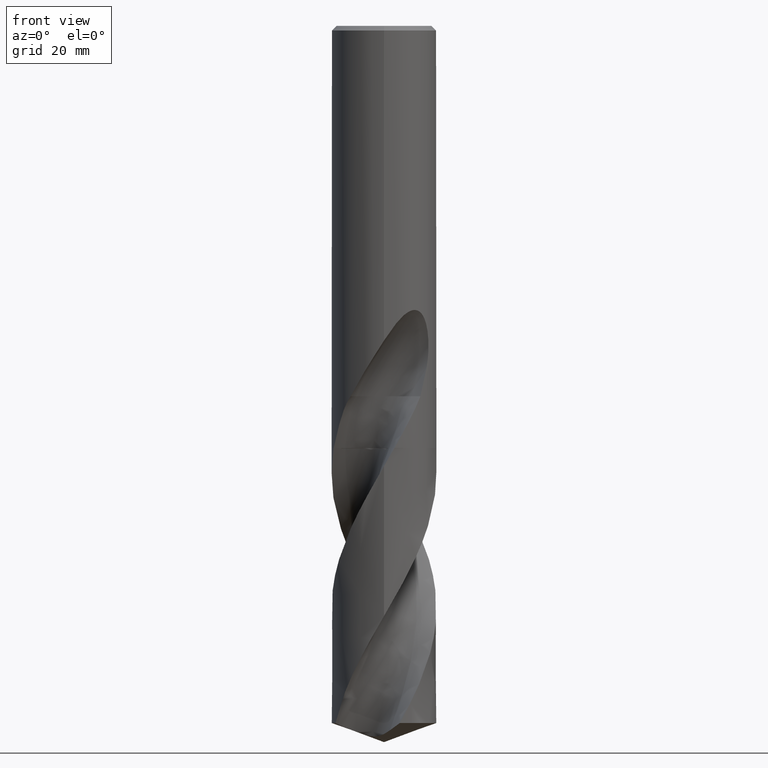
[diagram: clean part render]
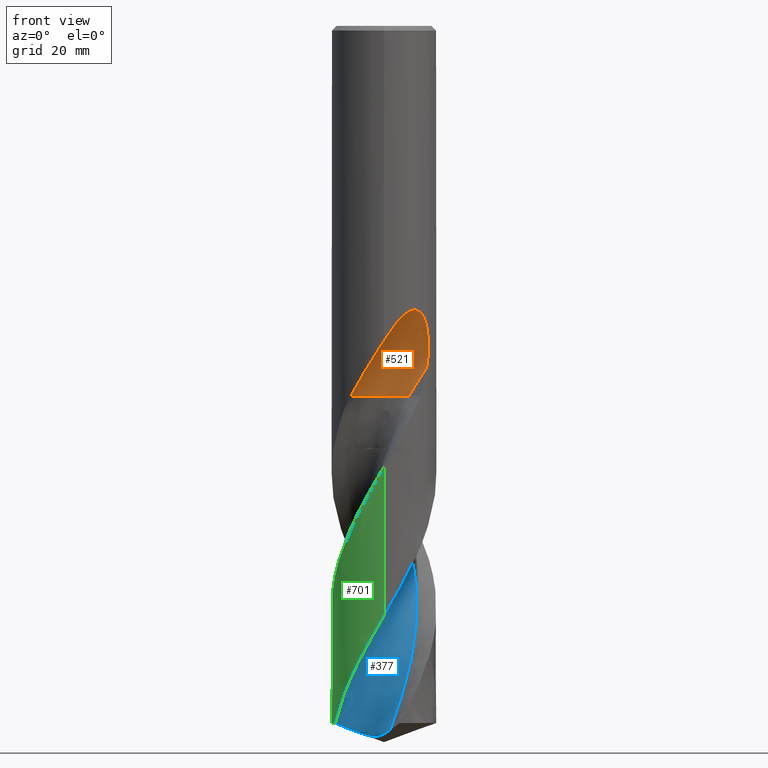
[diagram: same view with three faces highlighted in distinct colors, each labeled with its STEP entity id]
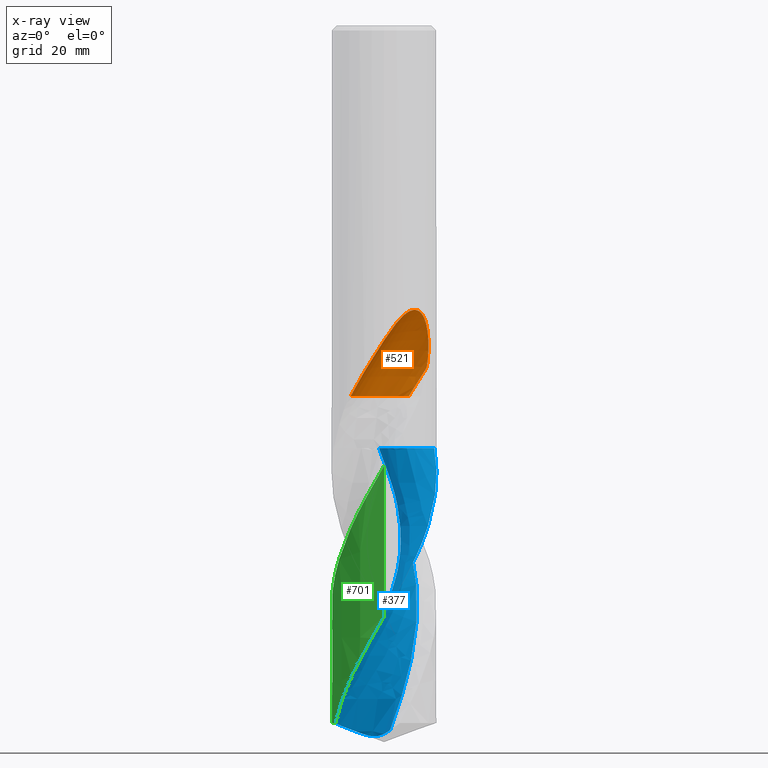
[diagram: x-ray of the same camera — body ghosted, the three highlighted faces saturated]
A machine part, front view with three faces highlighted in distinct colors.
The next image is the same camera in x-ray (body ghosted, the three faces saturated) — at least one of them is partly hidden behind the body in this view.
Their STEP definitions:

[orange] entity #521 — the highlighted face is a SurfaceOfRevolution surface.
#273=EDGE_CURVE('',#609,#503,#750,.T.);
#279=VERTEX_POINT('',#756);
#301=EDGE_CURVE('',#279,#579,#778,.T.);
#399=EDGE_CURVE('',#503,#579,#886,.T.);
#503=VERTEX_POINT('',#998);
#521=ADVANCED_FACE('',(#1017),#1018,.F.);
#555=EDGE_CURVE('',#595,#609,#1054,.T.);
#579=VERTEX_POINT('',#1082);
#595=VERTEX_POINT('',#1099);
#609=VERTEX_POINT('',#1113);
#615=EDGE_CURVE('',#595,#279,#1120,.T.);
#750=CIRCLE('',#1318,6.0);
#756=CARTESIAN_POINT('',(3.49161102591519E-013,-9.0,-54.0462201875557));
#778=B_SPLINE_CURVE_WITH_KNOTS('',3,(#1390,#1391,#1392,#1393,#1394,#1395,#1396,#1397,#1398,#1399,#1400,#1401,#1402,#1403,#1404,#1405,#1406,#1407,#1408,#1409,#1410,#1411,#1412,#1413,#1414,#1415,#1416,#1417,#1418,#1419),.UNSPECIFIED.,.F.,.F.,(4,2,2,2,2,2,2,2,2,2,2,2,2,2,4),(0.0,4.26297681796826,6.71123824567686,8.8923502902523,11.4048404132072,14.4393236699672,17.2190104172515,18.4220665226576,19.2988195253437,20.1268227676965,21.1747033682301,22.7056772339523,24.8835914108054,26.3262060908734,27.8429149951343),.UNSPECIFIED.);
#886=CIRCLE('',#3434,39.1073391014154);
#998=CARTESIAN_POINT('',(4.24264068704858,-4.45735931295143,-63.613));
#1017=FACE_OUTER_BOUND('',#5041,.T.);
#1018=SURFACE_OF_REVOLUTION('',#5042,#5043);
#1054=CIRCLE('',#5174,6.0);
#1082=CARTESIAN_POINT('',(7.32277946978824,-5.23229403195653,-58.6847779476165));
#1099=CARTESIAN_POINT('',(-5.73492168841538,-6.93618578382549,-63.613));
#1113=CARTESIAN_POINT('',(0.99233040869599,-2.78260854453317,-63.613));
#1120=B_SPLINE_CURVE_WITH_KNOTS('',3,(#5706,#5707,#5708,#5709,#5710,#5711,#5712,#5713,#5714,#5715,#5716,#5717,#5718,#5719,#5720,#5721,#5722,#5723,#5724,#5725,#5726,#5727,#5728,#5729,#5730,#5731,#5732,#5733,#5734,#5735),.UNSPECIFIED.,.F.,.F.,(4,2,2,2,2,2,2,2,2,2,2,2,2,2,4),(0.0,4.26297681796826,6.71123824567686,8.8923502902523,11.4048404132072,14.4393236699672,17.2190104172515,18.4220665226576,19.2988195253437,20.1268227676965,21.1747033682301,22.7056772339523,24.8835914108054,26.3262060908734,27.8429149951343),.UNSPECIFIED.);
#1318=AXIS2_PLACEMENT_3D('',#8136,#8137,#8138);
#1390=CARTESIAN_POINT('',(-5.73492168841538,-6.93618578382549,-63.613));
#1391=CARTESIAN_POINT('',(-5.16097520996777,-7.41073162354542,-62.4027889750831));
#1392=CARTESIAN_POINT('',(-4.50323961744426,-7.8347969800284,-61.2711019271065));
#1393=CARTESIAN_POINT('',(-3.3386341242448,-8.37091803405727,-59.357427425757));
#1394=CARTESIAN_POINT('',(-2.90508277206161,-8.53057993351622,-58.6626427318968));
#1395=CARTESIAN_POINT('',(-2.0710842160197,-8.76798261059598,-57.3266821680771));
#1396=CARTESIAN_POINT('',(-1.6751227552052,-8.85180769196075,-56.6929284196982));
#1397=CARTESIAN_POINT('',(-0.821654960505643,-8.97429133944279,-55.3318457622473));
#1398=CARTESIAN_POINT('',(-0.357839078752724,-9.00503404958273,-54.5949986371053));
#1399=CARTESIAN_POINT('',(0.674520373064876,-8.99244222771654,-53.0104260437654));
#1400=CARTESIAN_POINT('',(1.2847967189417,-8.93109539021287,-52.108818087397));
#1401=CARTESIAN_POINT('',(2.49111116899763,-8.66849116014461,-50.5696530359618));
#1402=CARTESIAN_POINT('',(3.18448431243846,-8.45580107112017,-49.7866048541013));
#1403=CARTESIAN_POINT('',(4.21836400145844,-7.95773661676273,-49.0748423683706));
#1404=CARTESIAN_POINT('',(4.55010948894584,-7.77538091321004,-48.9039124357591));
#1405=CARTESIAN_POINT('',(5.13091889635501,-7.39991028912675,-48.7715717708757));
#1406=CARTESIAN_POINT('',(5.36891751792054,-7.22906662387612,-48.7681021644199));
#1407=CARTESIAN_POINT('',(5.81202000666779,-6.87720495531965,-48.8798337665018));
#1408=CARTESIAN_POINT('',(6.00573706071496,-6.70733336132389,-48.9853425996501));
#1409=CARTESIAN_POINT('',(6.39965739535683,-6.33529758040683,-49.3161457122653));
#1410=CARTESIAN_POINT('',(6.5818731941373,-6.14257158986256,-49.5604689839899));
#1411=CARTESIAN_POINT('',(6.95509287213986,-5.72173002688095,-50.229689613285));
#1412=CARTESIAN_POINT('',(7.1336231295101,-5.49245108859739,-50.7259809091335));
#1413=CARTESIAN_POINT('',(7.47013131329371,-5.0308698671016,-52.1157578504556));
#1414=CARTESIAN_POINT('',(7.59232823664967,-4.83339010444773,-53.1059009678357));
#1415=CARTESIAN_POINT('',(7.65533472660836,-4.73266218415034,-54.9474239173537));
#1416=CARTESIAN_POINT('',(7.64192712776329,-4.75490007471234,-55.6865422208702));
#1417=CARTESIAN_POINT('',(7.54267433568991,-4.91091079717557,-57.1868491551409));
#1418=CARTESIAN_POINT('',(7.4533050279318,-5.04961892394105,-57.9423768577601));
#1419=CARTESIAN_POINT('',(7.32277946978823,-5.23229403195653,-58.6847779476166));
#3434=AXIS2_PLACEMENT_3D('',#8256,#8257,#8258);
#5041=EDGE_LOOP('',(#8363,#8364,#8365,#8366,#8367));
#5042=(B_SPLINE_CURVE(3,(#8369,#8370,#8371,#8372,#8373,#8374,#8375,#8376,#8377),.UNSPECIFIED.,.F.,.F.)B_SPLINE_CURVE_WITH_KNOTS((4,1,3,1,4),(-2.85639375994466,-2.55363798270679,-2.25088220546891,-1.94812642823103,-1.64537065099315),.UNSPECIFIED.)RATIONAL_B_SPLINE_CURVE((1.09166106065091,1.03055368688364,0.969446313116363,1.03055368688364,1.09166106065091,1.03055368688364,0.969446313116363,1.03055368688364,1.09166106065091))BOUNDED_CURVE()REPRESENTATION_ITEM('')GEOMETRIC_REPRESENTATION_ITEM()CURVE());
#5043=AXIS1_PLACEMENT('',#8384,#8385);
#5174=AXIS2_PLACEMENT_3D('',#8414,#8415,#8416);
#5706=CARTESIAN_POINT('',(-5.73492168841538,-6.93618578382549,-63.613));
#5707=CARTESIAN_POINT('',(-5.16097520996777,-7.41073162354542,-62.4027889750831));
#5708=CARTESIAN_POINT('',(-4.50323961744426,-7.8347969800284,-61.2711019271065));
#5709=CARTESIAN_POINT('',(-3.3386341242448,-8.37091803405727,-59.357427425757));
#5710=CARTESIAN_POINT('',(-2.90508277206161,-8.53057993351622,-58.6626427318968));
#5711=CARTESIAN_POINT('',(-2.0710842160197,-8.76798261059598,-57.3266821680771));
#5712=CARTESIAN_POINT('',(-1.6751227552052,-8.85180769196075,-56.6929284196982));
#5713=CARTESIAN_POINT('',(-0.821654960505643,-8.97429133944279,-55.3318457622473));
#5714=CARTESIAN_POINT('',(-0.357839078752724,-9.00503404958273,-54.5949986371053));
#5715=CARTESIAN_POINT('',(0.674520373064876,-8.99244222771654,-53.0104260437654));
#5716=CARTESIAN_POINT('',(1.2847967189417,-8.93109539021287,-52.108818087397));
#5717=CARTESIAN_POINT('',(2.49111116899763,-8.66849116014461,-50.5696530359618));
#5718=CARTESIAN_POINT('',(3.18448431243846,-8.45580107112017,-49.7866048541013));
#5719=CARTESIAN_POINT('',(4.21836400145844,-7.95773661676273,-49.0748423683706));
#5720=CARTESIAN_POINT('',(4.55010948894584,-7.77538091321004,-48.9039124357591));
#5721=CARTESIAN_POINT('',(5.13091889635501,-7.39991028912675,-48.7715717708757));
#5722=CARTESIAN_POINT('',(5.36891751792054,-7.22906662387612,-48.7681021644199));
#5723=CARTESIAN_POINT('',(5.81202000666779,-6.87720495531965,-48.8798337665018));
#5724=CARTESIAN_POINT('',(6.00573706071496,-6.70733336132389,-48.9853425996501));
#5725=CARTESIAN_POINT('',(6.39965739535683,-6.33529758040683,-49.3161457122653));
#5726=CARTESIAN_POINT('',(6.5818731941373,-6.14257158986256,-49.5604689839899));
#5727=CARTESIAN_POINT('',(6.95509287213986,-5.72173002688095,-50.229689613285));
#5728=CARTESIAN_POINT('',(7.1336231295101,-5.49245108859739,-50.7259809091335));
#5729=CARTESIAN_POINT('',(7.47013131329371,-5.0308698671016,-52.1157578504556));
#5730=CARTESIAN_POINT('',(7.59232823664967,-4.83339010444773,-53.1059009678357));
#5731=CARTESIAN_POINT('',(7.65533472660836,-4.73266218415034,-54.9474239173537));
#5732=CARTESIAN_POINT('',(7.64192712776329,-4.75490007471234,-55.6865422208702));
#5733=CARTESIAN_POINT('',(7.54267433568991,-4.91091079717557,-57.1868491551409));
#5734=CARTESIAN_POINT('',(7.4533050279318,-5.04961892394105,-57.9423768577601));
#5735=CARTESIAN_POINT('',(7.32277946978823,-5.23229403195653,-58.6847779476166));
#8136=CARTESIAN_POINT('',(-2.44949709595112E-005,-8.69997550502904,-63.613));
#8137=DIRECTION('',(-0.0,0.0,-1.0));
#8138=DIRECTION('',(-0.707102698679602,-0.707110863669923,0.0));
#8256=CARTESIAN_POINT('',(3.05088768506864,-43.5,-65.5198048031679));
#8257=DIRECTION('',(0.847998304005088,-9.29188155437458E-018,-0.52999894000318));
#8258=DIRECTION('',(0.053559812253361,0.994880693138896,0.0856956996053776));
#8363=ORIENTED_EDGE('',*,*,#615,.F.);
#8364=ORIENTED_EDGE('',*,*,#555,.T.);
#8365=ORIENTED_EDGE('',*,*,#273,.T.);
#8366=ORIENTED_EDGE('',*,*,#399,.T.);
#8367=ORIENTED_EDGE('',*,*,#301,.F.);
#8369=CARTESIAN_POINT('',(4.24264068704858,-4.45735931295143,-63.613));
#8370=CARTESIAN_POINT('',(3.41171094568551,-3.62641997675397,-63.613));
#8371=CARTESIAN_POINT('',(1.25110704323628,-2.44568893748585,-63.613));
#8372=CARTESIAN_POINT('',(-1.19744570346448,-2.70438655439443,-63.613));
#8373=CARTESIAN_POINT('',(-2.2840875476842,-3.15172749586162,-63.613));
#8374=CARTESIAN_POINT('',(-3.37072939190391,-3.59906843732881,-63.613));
#8375=CARTESIAN_POINT('',(-5.29174855029733,-5.1392049259088,-63.613));
#8376=CARTESIAN_POINT('',(-5.99487352307006,-7.49885538371677,-63.613));
#8377=CARTESIAN_POINT('',(-5.99996810818737,-8.67396323439451,-63.613));
#8384=CARTESIAN_POINT('',(3.05088768506864,-43.5,-65.5198048031679));
#8385=DIRECTION('',(-0.847998304005088,0.0,0.52999894000318));
#8414=CARTESIAN_POINT('',(-2.44949709595112E-005,-8.69997550502904,-63.613));
#8415=DIRECTION('',(-0.0,0.0,-1.0));
#8416=DIRECTION('',(-0.707102698679602,-0.707110863669923,0.0));

[blue] entity #377 — the highlighted face is a freeform B-spline surface patch.
#291=EDGE_CURVE('',#465,#501,#768,.T.);
#295=VERTEX_POINT('',#772);
#337=VERTEX_POINT('',#817);
#377=ADVANCED_FACE('',(#860),#861,.F.);
#385=VERTEX_POINT('',#870);
#465=VERTEX_POINT('',#957);
#479=EDGE_CURVE('',#501,#385,#973,.T.);
#491=EDGE_CURVE('',#641,#465,#985,.T.);
#501=VERTEX_POINT('',#996);
#525=EDGE_CURVE('',#337,#295,#1023,.T.);
#553=EDGE_CURVE('',#295,#641,#1052,.T.);
#599=EDGE_CURVE('',#385,#337,#1103,.T.);
#641=VERTEX_POINT('',#1147);
#768=B_SPLINE_CURVE_WITH_KNOTS('',3,(#1356,#1357,#1358,#1359,#1360,#1361,#1362,#1363,#1364,#1365,#1366,#1367,#1368,#1369,#1370,#1371,#1372,#1373,#1374,#1375,#1376,#1377),.UNSPECIFIED.,.F.,.F.,(4,2,2,2,2,2,2,2,2,2,4),(0.0,3.40663581984234,4.90571814448648,6.13815174907829,8.08608969259795,10.4215845416651,13.1044022949008,16.1252293213243,19.4942916135824,21.4810575145538,23.4675885889846),.UNSPECIFIED.);
#772=CARTESIAN_POINT('',(8.64142653074174,2.51474605365439,-72.505));
#817=CARTESIAN_POINT('',(9.43286105202614E-015,-8.99996111550753,-101.36135100112));
#860=FACE_OUTER_BOUND('',#1945,.T.);
#861=B_SPLINE_SURFACE_WITH_KNOTS('',3,3,((#1946,#1947,#1948,#1949,#1950,#1951,#1952,#1953,#1954,#1955,#1956,#1957,#1958,#1959,#1960,#1961,#1962,#1963,#1964,#1965,#1966,#1967,#1968,#1969,#1970,#1971,#1972,#1973,#1974,#1975,#1976,#1977,#1978,#1979,#1980,#1981,#1982,#1983,#1984,#1985,#1986,#1987,#1988),(#1989,#1990,#1991,#1992,#1993,#1994,#1995,#1996,#1997,#1998,#1999,#2000,#2001,#2002,#2003,#2004,#2005,#2006,#2007,#2008,#2009,#2010,#2011,#2012,#2013,#2014,#2015,#2016,#2017,#2018,#2019,#2020,#2021,#2022,#2023,#2024,#2025,#2026,#2027,#2028,#2029,#2030,#2031),(#2032,#2033,#2034,#2035,#2036,#2037,#2038,#2039,#2040,#2041,#2042,#2043,#2044,#2045,#2046,#2047,#2048,#2049,#2050,#2051,#2052,#2053,#2054,#2055,#2056,#2057,#2058,#2059,#2060,#2061,#2062,#2063,#2064,#2065,#2066,#2067,#2068,#2069,#2070,#2071,#2072,#2073,#2074),(#2075,#2076,#2077,#2078,#2079,#2080,#2081,#2082,#2083,#2084,#2085,#2086,#2087,#2088,#2089,#2090,#2091,#2092,#2093,#2094,#2095,#2096,#2097,#2098,#2099,#2100,#2101,#2102,#2103,#2104,#2105,#2106,#2107,#2108,#2109,#2110,#2111,#2112,#2113,#2114,#2115,#2116,#2117),(#2118,#2119,#2120,#2121,#2122,#2123,#2124,#2125,#2126,#2127,#2128,#2129,#2130,#2131,#2132,#2133,#2134,#2135,#2136,#2137,#2138,#2139,#2140,#2141,#2142,#2143,#2144,#2145,#2146,#2147,#2148,#2149,#2150,#2151,#2152,#2153,#2154,#2155,#2156,#2157,#2158,#2159,#2160),(#2161,#2162,#2163,#2164,#2165,#2166,#2167,#2168,#2169,#2170,#2171,#2172,#2173,#2174,#2175,#2176,#2177,#2178,#2179,#2180,#2181,#2182,#2183,#2184,#2185,#2186,#2187,#2188,#2189,#2190,#2191,#2192,#2193,#2194,#2195,#2196,#2197,#2198,#2199,#2200,#2201,#2202,#2203),(#2204,#2205,#2206,#2207,#2208,#2209,#2210,#2211,#2212,#2213,#2214,#2215,#2216,#2217,#2218,#2219,#2220,#2221,#2222,#2223,#2224,#2225,#2226,#2227,#2228,#2229,#2230,#2231,#2232,#2233,#2234,#2235,#2236,#2237,#2238,#2239,#2240,#2241,#2242,#2243,#2244,#2245,#2246),(#2247,#2248,#2249,#2250,#2251,#2252,#2253,#2254,#2255,#2256,#2257,#2258,#2259,#2260,#2261,#2262,#2263,#2264,#2265,#2266,#2267,#2268,#2269,#2270,#2271,#2272,#2273,#2274,#2275,#2276,#2277,#2278,#2279,#2280,#2281,#2282,#2283,#2284,#2285,#2286,#2287,#2288,#2289),(#2290,#2291,#2292,#2293,#2294,#2295,#2296,#2297,#2298,#2299,#2300,#2301,#2302,#2303,#2304,#2305,#2306,#2307,#2308,#2309,#2310,#2311,#2312,#2313,#2314,#2315,#2316,#2317,#2318,#2319,#2320,#2321,#2322,#2323,#2324,#2325,#2326,#2327,#2328,#2329,#2330,#2331,#2332),(#2333,#2334,#2335,#2336,#2337,#2338,#2339,#2340,#2341,#2342,#2343,#2344,#2345,#2346,#2347,#2348,#2349,#2350,#2351,#2352,#2353,#2354,#2355,#2356,#2357,#2358,#2359,#2360,#2361,#2362,#2363,#2364,#2365,#2366,#2367,#2368,#2369,#2370,#2371,#2372,#2373,#2374,#2375),(#2376,#2377,#2378,#2379,#2380,#2381,#2382,#2383,#2384,#2385,#2386,#2387,#2388,#2389,#2390,#2391,#2392,#2393,#2394,#2395,#2396,#2397,#2398,#2399,#2400,#2401,#2402,#2403,#2404,#2405,#2406,#2407,#2408,#2409,#2410,#2411,#2412,#2413,#2414,#2415,#2416,#2417,#2418),(#2419,#2420,#2421,#2422,#2423,#2424,#2425,#2426,#2427,#2428,#2429,#2430,#2431,#2432,#2433,#2434,#2435,#2436,#2437,#2438,#2439,#2440,#2441,#2442,#2443,#2444,#2445,#2446,#2447,#2448,#2449,#2450,#2451,#2452,#2453,#2454,#2455,#2456,#2457,#2458,#2459,#2460,#2461),(#2462,#2463,#2464,#2465,#2466,#2467,#2468,#2469,#2470,#2471,#2472,#2473,#2474,#2475,#2476,#2477,#2478,#2479,#2480,#2481,#2482,#2483,#2484,#2485,#2486,#2487,#2488,#2489,#2490,#2491,#2492,#2493,#2494,#2495,#2496,#2497,#2498,#2499,#2500,#2501,#2502,#2503,#2504),(#2505,#2506,#2507,#2508,#2509,#2510,#2511,#2512,#2513,#2514,#2515,#2516,#2517,#2518,#2519,#2520,#2521,#2522,#2523,#2524,#2525,#2526,#2527,#2528,#2529,#2530,#2531,#2532,#2533,#2534,#2535,#2536,#2537,#2538,#2539,#2540,#2541,#2542,#2543,#2544,#2545,#2546,#2547)),.UNSPECIFIED.,.F.,.F.,.F.,(4,1,1,1,1,1,1,1,1,1,1,4),(4,1,2,2,2,2,2,2,1,2,2,2,2,2,2,2,2,2,2,2,1,2,4),(8.06827116691296E-017,0.294525393809048,0.589050787618095,0.883576181427143,1.17810157523619,1.47262696904524,1.76715236285429,2.06167775666333,2.35620315047238,2.65072854428143,2.94525393809048,3.14160420062984),(0.0,1.1933961123314,2.3867922246628,3.5801883369942,4.7735844493256,7.1603766739884,9.54716889865119,11.933961123314,14.3207533479768,19.0943377973024,23.867922246628,28.6415066959536,33.4150911452792,38.1886755946048,42.9622600439304,47.735844493256,52.5094289425816,57.2830133919072,62.0565978412328,66.8301822905584,71.603766739884,73.9905589645468,76.3773511892095),.UNSPECIFIED.);
#870=CARTESIAN_POINT('',(-8.32250476081221,-3.42577210366627,-119.724267891604));
#957=CARTESIAN_POINT('',(1.05032382201522,-5.57423766177261,-120.935441426501));
#973=B_SPLINE_CURVE_WITH_KNOTS('',3,(#4583,#4584,#4585,#4586,#4587,#4588,#4589,#4590,#4591,#4592,#4593,#4594,#4595,#4596,#4597,#4598,#4599,#4600,#4601,#4602,#4603,#4604),.UNSPECIFIED.,.F.,.F.,(4,2,2,2,2,2,2,2,2,2,4),(0.0,3.40663581984234,4.90571814448648,6.13815174907829,8.08608969259795,10.4215845416651,13.1044022949008,16.1252293213243,19.4942916135824,21.4810575145538,23.4675885889846),.UNSPECIFIED.);
#985=B_SPLINE_CURVE_WITH_KNOTS('',3,(#4619,#4620,#4621,#4622,#4623,#4624,#4625,#4626,#4627,#4628,#4629,#4630,#4631,#4632,#4633,#4634,#4635,#4636,#4637,#4638,#4639,#4640,#4641,#4642,#4643,#4644,#4645,#4646,#4647,#4648,#4649,#4650,#4651,#4652,#4653,#4654,#4655,#4656,#4657,#4658,#4659,#4660,#4661),.UNSPECIFIED.,.F.,.F.,(4,1,2,2,2,2,2,2,1,2,2,2,2,2,2,2,2,2,2,2,1,2,4),(0.0,1.1933961123314,2.3867922246628,3.5801883369942,4.7735844493256,7.1603766739884,9.54716889865119,11.933961123314,14.3207533479768,19.0943377973024,23.867922246628,28.6415066959536,33.4150911452792,38.1886755946048,42.9622600439304,47.735844493256,52.5094289425816,57.2830133919072,62.0565978412328,66.8301822905584,71.603766739884,73.9905589645468,76.3773511892095),.UNSPECIFIED.);
#996=CARTESIAN_POINT('',(8.67099081872758E-015,-3.81013589955994,-121.613223944051));
#1023=B_SPLINE_CURVE_WITH_KNOTS('',3,(#5049,#5050,#5051,#5052,#5053,#5054,#5055,#5056,#5057,#5058,#5059,#5060,#5061,#5062,#5063,#5064,#5065,#5066,#5067,#5068,#5069,#5070,#5071,#5072,#5073,#5074,#5075,#5076,#5077,#5078,#5079,#5080,#5081,#5082,#5083,#5084,#5085,#5086,#5087,#5088,#5089,#5090,#5091,#5092,#5093,#5094,#5095,#5096,#5097,#5098,#5099,#5100,#5101,#5102,#5103,#5104,#5105,#5106,#5107,#5108,#5109,#5110,#5111,#5112),.UNSPECIFIED.,.F.,.F.,(4,2,2,2,2,2,2,2,2,2,2,2,2,2,2,2,2,2,2,2,2,2,2,2,2,2,2,2,2,2,2,4),(0.0,2.53356255092293,3.78901051770149,5.73573277002038,7.8834745622994,8.68765799858667,9.73172660513491,11.8135868537541,15.4652888241444,16.6686749431068,18.5400257652732,21.8351076451286,22.1006064841908,24.3444215178135,25.4502120596634,26.9064610551272,28.9517938846537,30.0450087853825,31.0270015567336,33.0170781288967,34.0274092508064,35.310699702325,38.7513798563752,39.7404351478502,41.597437817907,42.7434284594584,44.2231036214655,46.8175937423161,48.7604441798738,51.6816289669399,53.1395889770056,54.5988819151971),.UNSPECIFIED.);
#1052=B_SPLINE_CURVE_WITH_KNOTS('',3,(#5152,#5153,#5154,#5155,#5156,#5157,#5158,#5159,#5160,#5161,#5162,#5163,#5164,#5165,#5166,#5167,#5168,#5169,#5170,#5171),.UNSPECIFIED.,.F.,.F.,(4,2,2,2,2,2,2,2,2,4),(-18.9007722621771,-17.6504117518353,-16.3997938230041,-14.0547446309547,-11.7099869271717,-9.36657026571753,-7.0247579280905,-4.68386455786257,-2.34264348805169,-0.0),.UNSPECIFIED.);
#1103=B_SPLINE_CURVE_WITH_KNOTS('',3,(#5608,#5609,#5610,#5611,#5612,#5613,#5614,#5615,#5616,#5617,#5618,#5619,#5620,#5621,#5622,#5623,#5624,#5625,#5626,#5627,#5628,#5629,#5630,#5631,#5632,#5633,#5634,#5635,#5636,#5637,#5638,#5639,#5640,#5641,#5642,#5643,#5644,#5645,#5646,#5647,#5648,#5649,#5650,#5651,#5652,#5653,#5654,#5655,#5656,#5657,#5658,#5659,#5660,#5661,#5662,#5663,#5664,#5665,#5666,#5667,#5668,#5669,#5670,#5671),.UNSPECIFIED.,.F.,.F.,(4,2,2,2,2,2,2,2,2,2,2,2,2,2,2,2,2,2,2,2,2,2,2,2,2,2,2,2,2,2,2,4),(0.0,2.53356255092293,3.78901051770149,5.73573277002038,7.8834745622994,8.68765799858667,9.73172660513491,11.8135868537541,15.4652888241444,16.6686749431068,18.5400257652732,21.8351076451286,22.1006064841908,24.3444215178135,25.4502120596634,26.9064610551272,28.9517938846537,30.0450087853825,31.0270015567336,33.0170781288967,34.0274092508064,35.310699702325,38.7513798563752,39.7404351478502,41.597437817907,42.7434284594584,44.2231036214655,46.8175937423161,48.7604441798738,51.6816289669399,53.1395889770056,54.5988819151971),.UNSPECIFIED.);
#1147=CARTESIAN_POINT('',(-0.878027297289086,5.58818423851552,-72.505));
#1356=CARTESIAN_POINT('',(1.05032382201522,-5.57423766177261,-120.935441426501));
#1357=CARTESIAN_POINT('',(0.607679042102371,-4.59942175160994,-121.31394189913));
#1358=CARTESIAN_POINT('',(0.029190265265978,-3.78658862904774,-121.642135999815));
#1359=CARTESIAN_POINT('',(-0.771152352352807,-2.90226269951623,-121.911961179175));
#1360=CARTESIAN_POINT('',(-1.03999078245218,-2.63844816729915,-121.976564178358));
#1361=CARTESIAN_POINT('',(-1.56685637038531,-2.20086554999948,-122.022913768374));
#1362=CARTESIAN_POINT('',(-1.81279357248354,-2.02342807418471,-122.016974703442));
#1363=CARTESIAN_POINT('',(-2.4950833238294,-1.61945961547461,-121.930560201971));
#1364=CARTESIAN_POINT('',(-2.93325702322913,-1.44247689098137,-121.814095201825));
#1365=CARTESIAN_POINT('',(-3.93452627372183,-1.21949122290597,-121.505101376126));
#1366=CARTESIAN_POINT('',(-4.49290819794981,-1.20899705706833,-121.306636500925));
#1367=CARTESIAN_POINT('',(-5.6609605553207,-1.40280675165245,-120.877356152713));
#1368=CARTESIAN_POINT('',(-6.25663029403593,-1.63725739123498,-120.646959340404));
#1369=CARTESIAN_POINT('',(-7.40260429847536,-2.35895251883108,-120.173092099751));
#1370=CARTESIAN_POINT('',(-7.92713190026269,-2.86723501800561,-119.935070882911));
#1371=CARTESIAN_POINT('',(-8.81690515663708,-4.12358088890642,-119.460776842824));
#1372=CARTESIAN_POINT('',(-9.14980863771696,-4.88204223520382,-119.231427712194));
#1373=CARTESIAN_POINT('',(-9.44678471685747,-6.15866635709591,-118.897450424554));
#1374=CARTESIAN_POINT('',(-9.50557374816517,-6.64517382348004,-118.781017265757));
#1375=CARTESIAN_POINT('',(-9.5206014007666,-7.62466878603581,-118.562734818607));
#1376=CARTESIAN_POINT('',(-9.47683309006209,-8.11609280336187,-118.461234988281));
#1377=CARTESIAN_POINT('',(-9.38292793771218,-8.60003856477982,-118.367415225606));
#1945=EDGE_LOOP('',(#8230,#8231,#8232,#8233,#8234,#8235));
#1946=CARTESIAN_POINT('',(4.24264068704858,12.9426406870486,-63.613));
#1947=CARTESIAN_POINT('',(4.4928452380418,12.9280737385483,-63.921946279534));
#1948=CARTESIAN_POINT('',(4.99657300178194,12.8671235550177,-64.5421972148052));
#1949=CARTESIAN_POINT('',(5.50222390158195,12.7308966902584,-65.1651442803524));
#1950=CARTESIAN_POINT('',(6.0042947652283,12.5507134634659,-65.7873753568358));
#1951=CARTESIAN_POINT('',(6.25363802618862,12.4363568037886,-66.0980342280936));
#1952=CARTESIAN_POINT('',(6.74183125418681,12.1535296618322,-66.7156167740124));
#1953=CARTESIAN_POINT('',(6.98098025034184,12.0026767149087,-67.0238207664501));
#1954=CARTESIAN_POINT('',(7.68178817573643,11.5223974582593,-67.9463144710058));
#1955=CARTESIAN_POINT('',(8.12959148748512,11.19100874339,-68.5615485506138));
#1956=CARTESIAN_POINT('',(8.99518488013602,10.516687166385,-69.8004023280455));
#1957=CARTESIAN_POINT('',(9.40860885012381,10.1557191941388,-70.4202490069791));
#1958=CARTESIAN_POINT('',(10.1902745965243,9.38882989071266,-71.6609290857544));
#1959=CARTESIAN_POINT('',(10.5568848946424,8.97839465732062,-72.2803789766222));
#1960=CARTESIAN_POINT('',(11.2327865642408,8.10622852882685,-73.5157173895921));
#1961=CARTESIAN_POINT('',(12.1715793097054,6.74278994403438,-75.3701236850407));
#1962=CARTESIAN_POINT('',(12.8623091738317,5.23235550883466,-77.2279277896891));
#1963=CARTESIAN_POINT('',(13.5251700997046,3.13201505991302,-79.7024386697705));
#1964=CARTESIAN_POINT('',(13.734720177163,2.04489149790421,-80.9397950812958));
#1965=CARTESIAN_POINT('',(13.8822142779931,-0.152938252090463,-83.4146282875289));
#1966=CARTESIAN_POINT('',(13.8287378368665,-1.25878055524639,-84.6520186828264));
#1967=CARTESIAN_POINT('',(13.4528529150133,-3.42912674139958,-87.1267887581774));
#1968=CARTESIAN_POINT('',(13.1396528437479,-4.49102469636116,-88.3641800102073));
#1969=CARTESIAN_POINT('',(12.2615298704737,-6.51109254330432,-90.8389685023219));
#1970=CARTESIAN_POINT('',(11.7062561670558,-7.46889994972204,-92.0763602458008));
#1971=CARTESIAN_POINT('',(10.3756516879776,-9.22425228378782,-94.5511391794961));
#1972=CARTESIAN_POINT('',(9.60975206358078,-10.0237202491406,-95.7885326460222));
#1973=CARTESIAN_POINT('',(7.90194451392787,-11.4148767081622,-98.263312240334));
#1974=CARTESIAN_POINT('',(6.96879129987387,-12.0106832639587,-99.5007030955547));
#1975=CARTESIAN_POINT('',(4.9806087904749,-12.9588456873897,-101.975496447379));
#1976=CARTESIAN_POINT('',(3.93310787959444,-13.3172675361619,-103.212886266311));
#1977=CARTESIAN_POINT('',(1.77723685109305,-13.7688328700448,-105.687650280565));
#1978=CARTESIAN_POINT('',(0.674699275936027,-13.8695851026648,-106.925041487884));
#1979=CARTESIAN_POINT('',(-1.5268700302288,-13.7987870253652,-109.399870586265));
#1980=CARTESIAN_POINT('',(-2.62196301182535,-13.6361668766845,-110.637260957763));
#1981=CARTESIAN_POINT('',(-4.74443491002099,-13.0475222682891,-113.111948706364));
#1982=CARTESIAN_POINT('',(-5.77018953118615,-12.6305917145941,-114.349376532492));
#1983=CARTESIAN_POINT('',(-7.69318016048132,-11.5555330602889,-116.824394206313));
#1984=CARTESIAN_POINT('',(-9.04027012298888,-10.5853230217464,-118.68012110858));
#1985=CARTESIAN_POINT('',(-10.1842310958104,-9.3898297618564,-120.535146651887));
#1986=CARTESIAN_POINT('',(-10.8937467715482,-8.54568491812608,-121.771986455753));
#1987=CARTESIAN_POINT('',(-11.2263205432539,-8.10970068117618,-122.389823665142));
#1988=CARTESIAN_POINT('',(-11.5378272385616,-7.66271505150588,-123.008305269768));
#1989=CARTESIAN_POINT('',(4.65914407156149,12.5261004599468,-63.6130000000004));
#1990=CARTESIAN_POINT('',(4.90931515319702,12.5115000455575,-63.9219454158314));
#1991=CARTESIAN_POINT('',(5.40987746942291,12.4473498973965,-64.5423659796003));
#1992=CARTESIAN_POINT('',(5.90591946448643,12.3018392243885,-65.1657151670084));
#1993=CARTESIAN_POINT('',(6.394788714785,12.1096076670673,-65.7882997026637));
#1994=CARTESIAN_POINT('',(6.63550221371541,11.9876291145183,-66.099100678979));
#1995=CARTESIAN_POINT('',(7.10188748255786,11.6871216603585,-66.7165713181284));
#1996=CARTESIAN_POINT('',(7.32974177652788,11.5277576566835,-67.0246547384367));
#1997=CARTESIAN_POINT('',(7.99554167645321,11.0230483843129,-67.9465678056557));
#1998=CARTESIAN_POINT('',(8.42147081694825,10.6788582823807,-68.5614421199725));
#1999=CARTESIAN_POINT('',(9.24696408272345,9.98367796620219,-69.8004490884824));
#2000=CARTESIAN_POINT('',(9.639868334151,9.61349554439196,-70.4204154442424));
#2001=CARTESIAN_POINT('',(10.3794855507486,8.83054117127232,-71.6614381043881));
#2002=CARTESIAN_POINT('',(10.7239440599705,8.41302258024586,-72.280966676421));
#2003=CARTESIAN_POINT('',(11.3533880550156,7.52915859732456,-73.5160911407971));
#2004=CARTESIAN_POINT('',(12.2225299660444,6.15268288777249,-75.3703221881863));
#2005=CARTESIAN_POINT('',(12.8431472668016,4.6417394678485,-77.2283052362254));
#2006=CARTESIAN_POINT('',(13.4125000588905,2.55192911917453,-79.7027878118236));
#2007=CARTESIAN_POINT('',(13.576573152731,1.47551749819806,-80.9401405496498));
#2008=CARTESIAN_POINT('',(13.6356404960042,-0.689965583112894,-83.4149789727876));
#2009=CARTESIAN_POINT('',(13.5404945627731,-1.77464052933345,-84.6523692585615));
#2010=CARTESIAN_POINT('',(13.0863593995664,-3.8926760622935,-87.1271380019367));
#2011=CARTESIAN_POINT('',(12.7376774910765,-4.92416642887774,-88.3645292346704));
#2012=CARTESIAN_POINT('',(11.7958779773708,-6.87491115748125,-90.8393182817749));
#2013=CARTESIAN_POINT('',(11.213311747311,-7.79478603214723,-92.0767100735507));
#2014=CARTESIAN_POINT('',(9.83721547029493,-9.46773147274914,-94.5514885632541));
#2015=CARTESIAN_POINT('',(9.05375872072956,-10.223889868971,-95.7888821854223));
#2016=CARTESIAN_POINT('',(7.32121926861704,-11.5242126348802,-98.2636615577382));
#2017=CARTESIAN_POINT('',(6.38124177641608,-12.07378523005,-99.5010523916909));
#2018=CARTESIAN_POINT('',(4.39049438134527,-12.9278450145511,-101.975846631498));
#2019=CARTESIAN_POINT('',(3.34728864299006,-13.2397337303085,-103.213235915857));
#2020=CARTESIAN_POINT('',(1.21115961692592,-13.5992688129251,-105.687998598135));
#2021=CARTESIAN_POINT('',(0.123790447932316,-13.6558189763342,-106.925391056163));
#2022=CARTESIAN_POINT('',(-2.03684057178444,-13.5002468072896,-109.400223262487));
#2023=CARTESIAN_POINT('',(-3.10675079649415,-13.2982687309519,-110.63761107572));
#2024=CARTESIAN_POINT('',(-5.16944259936928,-12.6369586332398,-113.112290388474));
#2025=CARTESIAN_POINT('',(-6.1614114829273,-12.1877056029697,-114.34972620935));
#2026=CARTESIAN_POINT('',(-8.0089939184805,-11.056069283626,-116.824761198855));
#2027=CARTESIAN_POINT('',(-9.29554944950397,-10.0508674171527,-118.680433334992));
#2028=CARTESIAN_POINT('',(-10.3729202859542,-8.83130792363221,-120.535494309644));
#2029=CARTESIAN_POINT('',(-11.0366381145918,-7.97373024390063,-121.772363527973));
#2030=CARTESIAN_POINT('',(-11.3470215359114,-7.5327399669309,-122.390149422513));
#2031=CARTESIAN_POINT('',(-11.6371197468325,-7.08209322172808,-123.008649785797));
#2032=CARTESIAN_POINT('',(5.36858526657406,11.5695730948488,-63.613));
#2033=CARTESIAN_POINT('',(5.61867950130044,11.554915679901,-63.9219439211814));
#2034=CARTESIAN_POINT('',(6.11196245879504,11.4853046435219,-64.5426588240591));
#2035=CARTESIAN_POINT('',(6.58603516158962,11.3240766402908,-65.1667057915281));
#2036=CARTESIAN_POINT('',(7.04493048818279,11.1116643095457,-65.7899036609419));
#2037=CARTESIAN_POINT('',(7.26612560486857,10.9770017259223,-66.1009512323941));
#2038=CARTESIAN_POINT('',(7.68365519108685,10.647602429693,-66.7182276701101));
#2039=CARTESIAN_POINT('',(7.8863977831113,10.4745666156239,-67.0261018769295));
#2040=CARTESIAN_POINT('',(8.47494204565216,9.93138124282809,-67.9470074025086));
#2041=CARTESIAN_POINT('',(8.85332990991178,9.56807602240893,-68.5612574407138));
#2042=CARTESIAN_POINT('',(9.59244300930598,8.84307149250063,-69.8005302257921));
#2043=CARTESIAN_POINT('',(9.94157821713315,8.46054572930753,-70.4207042679965));
#2044=CARTESIAN_POINT('',(10.5923403786378,7.65793139305035,-71.6623213567291));
#2045=CARTESIAN_POINT('',(10.8903977142396,7.23281531011533,-72.281986458037));
#2046=CARTESIAN_POINT('',(11.4234638298202,6.33933281214627,-73.5167397045772));
#2047=CARTESIAN_POINT('',(12.1494472433135,4.95743726409635,-75.3706665959987));
#2048=CARTESIAN_POINT('',(12.6296975200369,3.46626555812514,-77.2289602968415));
#2049=CARTESIAN_POINT('',(13.0151686330341,1.42524091318937,-79.7033935546471));
#2050=CARTESIAN_POINT('',(13.0914697831711,0.383736514275174,-80.9407399810454));
#2051=CARTESIAN_POINT('',(12.9832865518921,-1.69083723108633,-83.4155875329183));
#2052=CARTESIAN_POINT('',(12.8110833325073,-2.72082447178693,-84.6529776377971));
#2053=CARTESIAN_POINT('',(12.2159690965237,-4.71104283229423,-87.1277439754163));
#2054=CARTESIAN_POINT('',(11.8053443879078,-5.67120098529151,-88.3651351730332));
#2055=CARTESIAN_POINT('',(10.7567555617145,-7.46442712518914,-90.8399252808909));
#2056=CARTESIAN_POINT('',(10.1308554277223,-8.30034907421371,-92.0773170935206));
#2057=CARTESIAN_POINT('',(8.68821670733209,-9.795002375669,-94.5520948409922));
#2058=CARTESIAN_POINT('',(7.8824900340799,-10.4593411228756,-95.7894887778466));
#2059=CARTESIAN_POINT('',(6.12742369366445,-11.5706748523525,-98.2642676475212));
#2060=CARTESIAN_POINT('',(5.18750774296253,-12.0257618443037,-99.5016585802855));
#2061=CARTESIAN_POINT('',(3.21953413450263,-12.6908681810668,-101.976454206957));
#2062=CARTESIAN_POINT('',(2.19871601928135,-12.9109701992496,-103.21384248377));
#2063=CARTESIAN_POINT('',(0.129357154128283,-13.0923104141051,-105.688603168598));
#2064=CARTESIAN_POINT('',(-0.914570503844039,-13.0649599450892,-106.925997346666));
#2065=CARTESIAN_POINT('',(-2.96819315644373,-12.7519894369744,-109.400835532621));
#2066=CARTESIAN_POINT('',(-3.97607075434478,-12.4787678054997,-110.638218407482));
#2067=CARTESIAN_POINT('',(-5.897663551879,-11.6898619145958,-113.112883493819));
#2068=CARTESIAN_POINT('',(-6.81248103153467,-11.1859862693464,-114.350333079535));
#2069=CARTESIAN_POINT('',(-8.49248062959058,-9.96356174690624,-116.825397919962));
#2070=CARTESIAN_POINT('',(-9.6475993304212,-8.90633035408433,-118.68097508438));
#2071=CARTESIAN_POINT('',(-10.5846624630382,-7.65838668067481,-120.536097640168));
#2072=CARTESIAN_POINT('',(-11.1528074190011,-6.78752492894673,-121.773017775764));
#2073=CARTESIAN_POINT('',(-11.4173286652519,-6.34310309424149,-122.390714731199));
#2074=CARTESIAN_POINT('',(-11.6635270563748,-5.89148257757075,-123.009247602771));
#2075=CARTESIAN_POINT('',(5.97041833799764,9.88759179198293,-63.6130000000004));
#2076=CARTESIAN_POINT('',(6.22037743276978,9.87288602510387,-63.9219425535975));
#2077=CARTESIAN_POINT('',(6.70083320148907,9.79860609692716,-64.5429262303949));
#2078=CARTESIAN_POINT('',(7.13652611691741,9.62438319854463,-65.1676103572351));
#2079=CARTESIAN_POINT('',(7.54360792107506,9.39605444465388,-65.7913682808755));
#2080=CARTESIAN_POINT('',(7.73126224010288,9.25168379795924,-66.1026410197915));
#2081=CARTESIAN_POINT('',(8.06608041893456,8.90208685112791,-66.7197401354656));
#2082=CARTESIAN_POINT('',(8.22682265654558,8.72036131832833,-67.0274232977601));
#2083=CARTESIAN_POINT('',(8.6877148953101,8.15558832799674,-67.9474088136782));
#2084=CARTESIAN_POINT('',(8.98953583804239,7.78554681547322,-68.5610887982921));
#2085=CARTESIAN_POINT('',(9.59166738454988,7.05534647596691,-69.8006043211841));
#2086=CARTESIAN_POINT('',(9.87259934882517,6.67416240543239,-70.4209679924228));
#2087=CARTESIAN_POINT('',(10.3872534986198,5.88202003282833,-71.6631278875511));
#2088=CARTESIAN_POINT('',(10.615396057616,5.46620405546052,-72.2829176737077));
#2089=CARTESIAN_POINT('',(11.005927989945,4.6008839972204,-73.5173319014437));
#2090=CARTESIAN_POINT('',(11.5240547414433,3.27354902081273,-75.3709811258692));
#2091=CARTESIAN_POINT('',(11.8114253176214,1.87188315214438,-77.2295583837481));
#2092=CARTESIAN_POINT('',(11.9541880617748,-0.0190382749226412,-79.703946742391));
#2093=CARTESIAN_POINT('',(11.9196980855599,-0.972213664908998,-80.9412873791959));
#2094=CARTESIAN_POINT('',(11.611022904002,-2.84346025998741,-83.4161431853975));
#2095=CARTESIAN_POINT('',(11.3520226055737,-3.76139045936834,-84.6535331074901));
#2096=CARTESIAN_POINT('',(10.6101997455735,-5.50674260988364,-87.1282973649248));
#2097=CARTESIAN_POINT('',(10.1417220532259,-6.33753319949983,-88.3656885110788));
#2098=CARTESIAN_POINT('',(9.00843629452085,-7.85814673749674,-90.8404795097597));
#2099=CARTESIAN_POINT('',(8.35689114174455,-8.55468830950349,-92.0778714006699));
#2100=CARTESIAN_POINT('',(6.8963737504193,-9.76443551423926,-94.5526484296942));
#2101=CARTESIAN_POINT('',(6.09866392727879,-10.2872742608674,-95.7900426667545));
#2102=CARTESIAN_POINT('',(4.3935593559644,-11.1175143103822,-98.2648210924378));
#2103=CARTESIAN_POINT('',(3.4948767618202,-11.4369990299678,-99.5022120783601));
#2104=CARTESIAN_POINT('',(1.64187608571136,-11.8407894375772,-101.977009030561));
#2105=CARTESIAN_POINT('',(0.69316408086514,-11.9388854285197,-103.214396392216));
#2106=CARTESIAN_POINT('',(-1.20275237695475,-11.8935122405774,-105.689155184258));
#2107=CARTESIAN_POINT('',(-2.14778624352267,-11.7646438727876,-106.926551100417));
#2108=CARTESIAN_POINT('',(-3.97926271024698,-11.2723344879209,-109.40139448046));
#2109=CARTESIAN_POINT('',(-4.86707169113624,-10.9238593276799,-110.638773156902));
#2110=CARTESIAN_POINT('',(-6.53056079602012,-10.0132398372759,-113.113424896874));
#2111=CARTESIAN_POINT('',(-7.31084531733628,-9.46455283246999,-114.350887219576));
#2112=CARTESIAN_POINT('',(-8.71075340123936,-8.18478281385423,-116.825979337682));
#2113=CARTESIAN_POINT('',(-9.65454438148142,-7.11010171930174,-118.681469849943));
#2114=CARTESIAN_POINT('',(-10.3778427902458,-5.88251289452438,-120.536648476406));
#2115=CARTESIAN_POINT('',(-10.80301311322,-5.03420105041252,-121.773615269217));
#2116=CARTESIAN_POINT('',(-11.0002072213772,-4.60482474314202,-122.391230877157));
#2117=CARTESIAN_POINT('',(-11.1829656805023,-4.17092318740603,-123.009793486061));
#2118=CARTESIAN_POINT('',(6.0580813482482,8.10333302552114,-63.613));
#2119=CARTESIAN_POINT('',(6.30789708909707,8.08862022074524,-63.9219421822045));
#2120=CARTESIAN_POINT('',(6.77472263991942,8.01359601748532,-64.542998738835));
#2121=CARTESIAN_POINT('',(7.1699165689165,7.83807867765827,-65.1678556328961));
#2122=CARTESIAN_POINT('',(7.52279624792181,7.60955922893966,-65.7917654173514));
#2123=CARTESIAN_POINT('',(7.67553626702096,7.46563472214528,-66.1030992124643));
#2124=CARTESIAN_POINT('',(7.92534120061013,7.12071987735623,-66.7201502436972));
#2125=CARTESIAN_POINT('',(8.04336882816976,6.94287108391817,-67.0277816048794));
#2126=CARTESIAN_POINT('',(8.37583832597013,6.39449612665058,-67.9475176581682));
#2127=CARTESIAN_POINT('',(8.60243399491939,6.04023463933135,-68.5610430776187));
#2128=CARTESIAN_POINT('',(9.07197411334796,5.34482601492998,-69.8006244051321));
#2129=CARTESIAN_POINT('',(9.28802915823683,4.984724290971,-70.4210395038427));
#2130=CARTESIAN_POINT('',(9.67547614888896,4.24211293137822,-71.6633465792055));
#2131=CARTESIAN_POINT('',(9.83941417054355,3.85549172627511,-72.2831701646372));
#2132=CARTESIAN_POINT('',(10.1017245055882,3.05849728843698,-73.5174924886118));
#2133=CARTESIAN_POINT('',(10.4367829065552,1.84371142988127,-75.3710664014087));
#2134=CARTESIAN_POINT('',(10.5655615136176,0.583687391877929,-77.2297205532748));
#2135=CARTESIAN_POINT('',(10.5196397041932,-1.09313952028325,-79.7040967446049));
#2136=CARTESIAN_POINT('',(10.404769860433,-1.9296282453676,-80.9414357979271));
#2137=CARTESIAN_POINT('',(9.96325892086692,-3.54810298978596,-83.416293862314));
#2138=CARTESIAN_POINT('',(9.65372752659469,-4.33360537837402,-84.6536837122526));
#2139=CARTESIAN_POINT('',(8.84259446189722,-5.80204782433618,-87.1284474308236));
#2140=CARTESIAN_POINT('',(8.35630848318249,-6.49224752695329,-88.3658385706578));
#2141=CARTESIAN_POINT('',(7.22110833716344,-7.72740081435873,-90.8406297704321));
#2142=CARTESIAN_POINT('',(6.58548251867951,-8.28311930013277,-92.0780217305731));
#2143=CARTESIAN_POINT('',(5.19056056987641,-9.21503860805673,-94.5527985092374));
#2144=CARTESIAN_POINT('',(4.44159774441925,-9.60479747105522,-95.7901929109315));
#2145=CARTESIAN_POINT('',(2.86590108046613,-10.1805508788804,-98.2649711053197));
#2146=CARTESIAN_POINT('',(2.04603971461545,-10.382241805635,-99.5023622718779));
#2147=CARTESIAN_POINT('',(0.37891751821266,-10.5693435216,-101.977159361956));
#2148=CARTESIAN_POINT('',(-0.465376718872657,-10.5716184651044,-103.214546656917));
#2149=CARTESIAN_POINT('',(-2.12950742589009,-10.3596418873855,-105.689304794364));
#2150=CARTESIAN_POINT('',(-2.95043675473033,-10.1623344766289,-106.926701167247));
#2151=CARTESIAN_POINT('',(-4.51727307404158,-9.56289435800794,-109.401546126161));
#2152=CARTESIAN_POINT('',(-5.26833860466022,-9.17726029612898,-110.638923608667));
#2153=CARTESIAN_POINT('',(-6.64950618928617,-8.22509196646675,-113.113571670306));
#2154=CARTESIAN_POINT('',(-7.28804263803524,-7.67257613719261,-114.351037593002));
#2155=CARTESIAN_POINT('',(-8.40327340238363,-6.41923651497847,-116.826136874325));
#2156=CARTESIAN_POINT('',(-9.13977096404894,-5.38920249037409,-118.681604035175));
#2157=CARTESIAN_POINT('',(-9.6644180694266,-4.24314487311288,-120.536797838552));
#2158=CARTESIAN_POINT('',(-9.95931618337791,-3.45791538022361,-121.77377728028));
#2159=CARTESIAN_POINT('',(-10.0964497321035,-3.0624808914839,-122.391370863619));
#2160=CARTESIAN_POINT('',(-10.2236435335665,-2.66395100931313,-123.00994150403));
#2161=CARTESIAN_POINT('',(5.62402476264956,6.3704570837534,-63.6129999999993));
#2162=CARTESIAN_POINT('',(5.87370128113525,6.35577915265708,-63.9219428424145));
#2163=CARTESIAN_POINT('',(6.32726741056387,6.2839993949,-64.5428701025065));
#2164=CARTESIAN_POINT('',(6.6833309499091,6.11899955799984,-65.1674204968531));
#2165=CARTESIAN_POINT('',(6.98428775250489,5.90603154180707,-65.7910608675223));
#2166=CARTESIAN_POINT('',(7.10374679428368,5.77266896021546,-66.1022863483594));
#2167=CARTESIAN_POINT('',(7.27355800128605,5.45691276351805,-66.719422678822));
#2168=CARTESIAN_POINT('',(7.35183533132203,5.29517327842703,-67.0271459409605));
#2169=CARTESIAN_POINT('',(7.56617113931791,4.79976985660521,-67.9473245621622));
#2170=CARTESIAN_POINT('',(7.72536155195475,4.48244568540741,-68.5611241991417));
#2171=CARTESIAN_POINT('',(8.07811918055322,3.85882007616135,-69.8005887650226));
#2172=CARTESIAN_POINT('',(8.23821078912529,3.53772571364808,-70.4209126344069));
#2173=CARTESIAN_POINT('',(8.51830658013856,2.87943882789138,-71.6629586072684));
#2174=CARTESIAN_POINT('',(8.6292796327693,2.53939281157342,-72.2827222065173));
#2175=CARTESIAN_POINT('',(8.78872328898392,1.84500295042961,-73.5172076161283));
#2176=CARTESIAN_POINT('',(8.98126760146543,0.791062066463565,-75.3709150958198));
#2177=CARTESIAN_POINT('',(8.99939982065996,-0.287382402528232,-77.2294328516777));
#2178=CARTESIAN_POINT('',(8.83506682781307,-1.7045612264338,-79.703830630819));
#2179=CARTESIAN_POINT('',(8.67715070191911,-2.40605470707692,-80.9411724582182));
#2180=CARTESIAN_POINT('',(8.18189992541501,-3.74408163636546,-83.416026584585));
#2181=CARTESIAN_POINT('',(7.86245519649781,-4.38819009418014,-84.6534165347894));
#2182=CARTESIAN_POINT('',(7.06537933484564,-5.5715268136582,-87.128181196658));
#2183=CARTESIAN_POINT('',(6.6028633765772,-6.12201995127342,-88.3655723754834));
#2184=CARTESIAN_POINT('',(5.5486963376379,-7.08344921419467,-90.8403631756289));
#2185=CARTESIAN_POINT('',(4.96918324210674,-7.50902961599795,-92.0777550558469));
#2186=CARTESIAN_POINT('',(3.71768167441907,-8.19412563658411,-94.5525322357513));
#2187=CARTESIAN_POINT('',(3.05399799997526,-8.47068561138067,-95.78992635399));
#2188=CARTESIAN_POINT('',(1.67601068618947,-8.84047582216033,-98.264704984399));
#2189=CARTESIAN_POINT('',(0.965770448869092,-8.95232575399001,-99.5020960142404));
#2190=CARTESIAN_POINT('',(-0.460575693710161,-8.98602736491558,-101.976892466541));
#2191=CARTESIAN_POINT('',(-1.17713281948654,-8.92691823671526,-103.214280230299));
#2192=CARTESIAN_POINT('',(-2.57109596424353,-8.62279624784163,-105.689039221273));
#2193=CARTESIAN_POINT('',(-3.25339776942036,-8.39602254538327,-106.926434839661));
#2194=CARTESIAN_POINT('',(-4.53589085892684,-7.7708859853216,-109.401277193758));
#2195=CARTESIAN_POINT('',(-5.14531439398214,-7.38938770622464,-110.638656695821));
#2196=CARTESIAN_POINT('',(-6.24425617110034,-6.47941355811127,-113.11331128403));
#2197=CARTESIAN_POINT('',(-6.74603679372338,-5.96438119794206,-114.350770935802));
#2198=CARTESIAN_POINT('',(-7.5965207629691,-4.81897156322159,-116.825857276679));
#2199=CARTESIAN_POINT('',(-8.14761134604315,-3.89183646155853,-118.681366019321));
#2200=CARTESIAN_POINT('',(-8.50582841212519,-2.88146490798416,-120.536532849793));
#2201=CARTESIAN_POINT('',(-8.69437576756021,-2.19441758456036,-121.773489870315));
#2202=CARTESIAN_POINT('',(-8.78388772982206,-1.84889812388111,-122.391122572552));
#2203=CARTESIAN_POINT('',(-8.8681773976329,-1.50034642250709,-123.00967890938));
#2204=CARTESIAN_POINT('',(4.70562951569776,4.8381991683148,-63.6129999999997));
#2205=CARTESIAN_POINT('',(4.95518292608485,4.82359502497861,-63.9219444708018));
#2206=CARTESIAN_POINT('',(5.39700235130692,4.75876902432093,-64.5425514046932));
#2207=CARTESIAN_POINT('',(5.71867397408841,4.61519283696654,-65.1663424193196));
#2208=CARTESIAN_POINT('',(5.97445878170599,4.43217913696405,-65.7893153108747));
#2209=CARTESIAN_POINT('',(6.06513630955344,4.31858465793088,-66.100272429651));
#2210=CARTESIAN_POINT('',(6.16686235923349,4.05395249965215,-66.7176201003436));
#2211=CARTESIAN_POINT('',(6.21177700646444,3.91916756842191,-67.0255710481867));
#2212=CARTESIAN_POINT('',(6.3284418278104,3.50874727096676,-67.9468461574137));
#2213=CARTESIAN_POINT('',(6.43385196605491,3.24633668553778,-68.5613251879974));
#2214=CARTESIAN_POINT('',(6.69569331445903,2.72530341317094,-69.8005004588649));
#2215=CARTESIAN_POINT('',(6.81355457031904,2.45778213921497,-70.4205983233068));
#2216=CARTESIAN_POINT('',(7.01540016990037,1.91135114713953,-71.6619973706685));
#2217=CARTESIAN_POINT('',(7.08920919097115,1.63124969857625,-72.2816124005127));
#2218=CARTESIAN_POINT('',(7.17999993618875,1.06490705818569,-73.516501794169));
#2219=CARTESIAN_POINT('',(7.2828577320077,0.206255044792074,-75.3705402765593));
#2220=CARTESIAN_POINT('',(7.24781810437539,-0.666309701958412,-77.228719999809));
#2221=CARTESIAN_POINT('',(7.04554468841643,-1.80064781817114,-79.7031713747372));
#2222=CARTESIAN_POINT('',(6.88562310269354,-2.36046322267194,-80.9405200869447));
#2223=CARTESIAN_POINT('',(6.42035647278744,-3.41451852806659,-83.4153643220829));
#2224=CARTESIAN_POINT('',(6.13246989426497,-3.92044378187821,-84.6527544230307));
#2225=CARTESIAN_POINT('',(5.43160807188347,-4.83503202891233,-87.1275217518857));
#2226=CARTESIAN_POINT('',(5.03239336881272,-5.25873449845373,-88.3649128758106));
#2227=CARTESIAN_POINT('',(4.13522832728651,-5.98174897805134,-90.8397026589425));
#2228=CARTESIAN_POINT('',(3.64718899584338,-6.2990837943968,-92.0770944236038));
#2229=CARTESIAN_POINT('',(2.60458127164721,-6.78961761407644,-94.5518724596076));
#2230=CARTESIAN_POINT('',(2.05536466961298,-6.98260834420752,-95.7892662206574));
#2231=CARTESIAN_POINT('',(0.926361537438758,-7.21269634876867,-98.2640453791752));
#2232=CARTESIAN_POINT('',(0.347101629120571,-7.27039527344487,-99.5014362354217));
#2233=CARTESIAN_POINT('',(-0.804306352528661,-7.227195997403,-101.976231329462));
#2234=CARTESIAN_POINT('',(-1.38080781499208,-7.14642618731871,-103.213620007211));
#2235=CARTESIAN_POINT('',(-2.48948840726015,-6.83255246279121,-105.688381385924));
#2236=CARTESIAN_POINT('',(-3.03057830454863,-6.61782278852227,-106.925774888024));
#2237=CARTESIAN_POINT('',(-4.03351269554884,-6.0506370520392,-109.400611009454));
#2238=CARTESIAN_POINT('',(-4.5085938698679,-5.71421311700008,-110.637995626535));
#2239=CARTESIAN_POINT('',(-5.34971088458441,-4.92654231329064,-113.112665940877));
#2240=CARTESIAN_POINT('',(-5.73150527567487,-4.48707767713779,-114.350110466568));
#2241=CARTESIAN_POINT('',(-6.35997301437703,-3.52180271979408,-116.825164369597));
#2242=CARTESIAN_POINT('',(-6.7635102449936,-2.7469567159463,-118.680776362107));
#2243=CARTESIAN_POINT('',(-7.00185152878453,-1.91474083108518,-120.535876332665));
#2244=CARTESIAN_POINT('',(-7.11712846106683,-1.35252002741467,-121.772777789338));
#2245=CARTESIAN_POINT('',(-7.17555900455077,-1.06859013853863,-122.390507325951));
#2246=CARTESIAN_POINT('',(-7.23329995807673,-0.780319003995263,-123.009028316757));
#2247=CARTESIAN_POINT('',(3.3819877665918,3.63851726502679,-63.6130000000001));
#2248=CARTESIAN_POINT('',(3.63144478896463,3.62401946385537,-63.921946928408));
#2249=CARTESIAN_POINT('',(4.06404184477567,3.56925767544502,-64.5420700897723));
#2250=CARTESIAN_POINT('',(4.35902186359522,3.45616629835912,-65.1647142467351));
#2251=CARTESIAN_POINT('',(4.58027575825474,3.31493010656546,-65.7866790722213));
#2252=CARTESIAN_POINT('',(4.64914991242047,3.22860749912642,-66.0972308955481));
#2253=CARTESIAN_POINT('',(4.70056284630651,3.03266195717828,-66.7148977456256));
#2254=CARTESIAN_POINT('',(4.72137562149397,2.93335551875294,-67.0231925585611));
#2255=CARTESIAN_POINT('',(4.76924359865536,2.63261115484288,-67.9461236395074));
#2256=CARTESIAN_POINT('',(4.83912998854615,2.43836128328778,-68.561628725415));
#2257=CARTESIAN_POINT('',(5.04375096995029,2.04189444263568,-69.8003671011979));
#2258=CARTESIAN_POINT('',(5.13675182167209,1.83789829209904,-70.4201236370793));
#2259=CARTESIAN_POINT('',(5.29618716611963,1.42122152837168,-71.6605456529782));
#2260=CARTESIAN_POINT('',(5.35183360600373,1.20927161635104,-72.279936285748));
#2261=CARTESIAN_POINT('',(5.41409767260988,0.785391453209826,-73.5154358454032));
#2262=CARTESIAN_POINT('',(5.48782026128127,0.139653908192028,-75.369974176764));
#2263=CARTESIAN_POINT('',(5.46166243675714,-0.520461321856305,-77.2276434243155));
#2264=CARTESIAN_POINT('',(5.30518692587449,-1.37312430416612,-79.7021757155881));
#2265=CARTESIAN_POINT('',(5.18447333149953,-1.79678015013579,-80.9395348543235));
#2266=CARTESIAN_POINT('',(4.83033262052372,-2.58779560431077,-83.4143641207964));
#2267=CARTESIAN_POINT('',(4.6127579034253,-2.97064874377554,-84.6517545897226));
#2268=CARTESIAN_POINT('',(4.08198096031455,-3.65599035931847,-87.1265256961638));
#2269=CARTESIAN_POINT('',(3.78014728037916,-3.97673722944289,-88.3639169461209));
#2270=CARTESIAN_POINT('',(3.10243209950242,-4.5171785280686,-90.8387050256468));
#2271=CARTESIAN_POINT('',(2.73334974411328,-4.7574822972876,-92.0760967272589));
#2272=CARTESIAN_POINT('',(1.94711964385117,-5.12247073127739,-94.5508760009011));
#2273=CARTESIAN_POINT('',(1.53170002779883,-5.26871882860847,-95.7882694158885));
#2274=CARTESIAN_POINT('',(0.681513371710764,-5.43739674821945,-98.2630490405288));
#2275=CARTESIAN_POINT('',(0.243312938988801,-5.48129819519571,-99.5004399125174));
#2276=CARTESIAN_POINT('',(-0.622672340134345,-5.44431985034986,-101.975232730834));
#2277=CARTESIAN_POINT('',(-1.05886132603809,-5.38347831121702,-103.21262290059));
#2278=CARTESIAN_POINT('',(-1.89171269173961,-5.14308615454353,-105.68738788652));
#2279=CARTESIAN_POINT('',(-2.30116755416852,-4.98087370785698,-106.924778248303));
#2280=CARTESIAN_POINT('',(-3.05340337843501,-4.55029530719404,-109.399604844045));
#2281=CARTESIAN_POINT('',(-3.41301142886776,-4.29600246562536,-110.636997295346));
#2282=CARTESIAN_POINT('',(-4.04290847899658,-3.70021146332974,-113.111691254485));
#2283=CARTESIAN_POINT('',(-4.33181951564016,-3.36789083545081,-114.349113076703));
#2284=CARTESIAN_POINT('',(-4.8001215745614,-2.63944216478946,-116.824117814396));
#2285=CARTESIAN_POINT('',(-5.1066664017912,-2.05316024780397,-118.679885912503));
#2286=CARTESIAN_POINT('',(-5.28200983566578,-1.42622686483185,-120.534884761644));
#2287=CARTESIAN_POINT('',(-5.36340674244863,-1.0047269037621,-121.771702426479));
#2288=CARTESIAN_POINT('',(-5.40997277641592,-0.78875704334092,-122.389578267708));
#2289=CARTESIAN_POINT('',(-5.45980678972903,-0.565877484114139,-123.008045755154));
#2290=CARTESIAN_POINT('',(1.76709148588151,2.87472792784317,-63.6130000000001));
#2291=CARTESIAN_POINT('',(2.01648714142078,2.860359869315,-63.9219500082743));
#2292=CARTESIAN_POINT('',(2.44318039046019,2.81790601920949,-64.5414676065032));
#2293=CARTESIAN_POINT('',(2.72146780367931,2.7417352442301,-65.1626761966829));
#2294=CARTESIAN_POINT('',(2.92180566028818,2.6505019027242,-65.7833791848917));
#2295=CARTESIAN_POINT('',(2.97773228439775,2.59660626751557,-66.0934236871449));
#2296=CARTESIAN_POINT('',(3.00093711969721,2.48099463608128,-66.7114900594332));
#2297=CARTESIAN_POINT('',(3.00898448433711,2.42263521117883,-67.0202153049739));
#2298=CARTESIAN_POINT('',(3.02285452692602,2.24681433207885,-67.9452192367222));
#2299=CARTESIAN_POINT('',(3.07853298994643,2.1281023323332,-68.562008666169));
#2300=CARTESIAN_POINT('',(3.26455736838751,1.86744826897668,-69.8002001813727));
#2301=CARTESIAN_POINT('',(3.35220873113016,1.73145852164437,-70.4195294365413));
#2302=CARTESIAN_POINT('',(3.50872611150166,1.45125993422327,-71.6587284952005));
#2303=CARTESIAN_POINT('',(3.56677560127949,1.30979929214027,-72.277838211672));
#2304=CARTESIAN_POINT('',(3.64309591259548,1.0305280144522,-73.5141015667792));
#2305=CARTESIAN_POINT('',(3.75074375075065,0.596994337780394,-75.3692655376989));
#2306=CARTESIAN_POINT('',(3.79475647140768,0.137602276882474,-77.2262958947876));
#2307=CARTESIAN_POINT('',(3.76387307163454,-0.458808986399579,-79.7009293445473));
#2308=CARTESIAN_POINT('',(3.72020433039104,-0.763549800090314,-80.9383015921113));
#2309=CARTESIAN_POINT('',(3.54876115758418,-1.33511025911805,-83.4131121344503));
#2310=CARTESIAN_POINT('',(3.43419677318938,-1.62060126363278,-84.6505030641975));
#2311=CARTESIAN_POINT('',(3.1327278111151,-2.1359408468937,-87.125278886025));
#2312=CARTESIAN_POINT('',(2.95396851837433,-2.38643368961912,-88.3626703004029));
#2313=CARTESIAN_POINT('',(2.53925199326194,-2.81586661278849,-90.8374562473121));
#2314=CARTESIAN_POINT('',(2.30636539937053,-3.01698782048762,-92.0748478354101));
#2315=CARTESIAN_POINT('',(1.80191724279481,-3.33625956494669,-94.5496287275798));
#2316=CARTESIAN_POINT('',(1.5281021314889,-3.47661716936101,-95.7870214110466));
#2317=CARTESIAN_POINT('',(0.962552422013642,-3.66746573246857,-98.261802146485));
#2318=CARTESIAN_POINT('',(0.663342809985205,-3.73911135699557,-99.4991928994298));
#2319=CARTESIAN_POINT('',(0.0686838761612037,-3.79094026664832,-101.973982619332));
#2320=CARTESIAN_POINT('',(-0.239019277741934,-3.78989960418719,-103.211374837412));
#2321=CARTESIAN_POINT('',(-0.829249329283235,-3.69989408850639,-105.686144226991));
#2322=CARTESIAN_POINT('',(-1.1279823764326,-3.62614930117983,-106.923530686401));
#2323=CARTESIAN_POINT('',(-1.67996984417954,-3.3990701040647,-109.398345413121));
#2324=CARTESIAN_POINT('',(-1.95291854870922,-3.25689201065649,-110.635747545993));
#2325=CARTESIAN_POINT('',(-2.4363907563487,-2.90603255011352,-113.110471297292));
#2326=CARTESIAN_POINT('',(-2.66752038548838,-2.70320507400542,-114.347864548947));
#2327=CARTESIAN_POINT('',(-3.0513007881139,-2.24787867286767,-116.822807852809));
#2328=CARTESIAN_POINT('',(-3.31976715071505,-1.87019681390336,-118.678771263972));
#2329=CARTESIAN_POINT('',(-3.49441601035052,-1.45799379585806,-120.53364359469));
#2330=CARTESIAN_POINT('',(-3.58424106585724,-1.18099015760782,-121.770356328045));
#2331=CARTESIAN_POINT('',(-3.63918123181933,-1.03349801188413,-122.388415309331));
#2332=CARTESIAN_POINT('',(-3.70043104803032,-0.875489557342288,-123.00681584274));
#2333=CARTESIAN_POINT('',(1.54718550033905E-005,2.61260866165562,-63.6130000000001));
#2334=CARTESIAN_POINT('',(0.249390068304909,2.59838257941428,-63.921953440847));
#2335=CARTESIAN_POINT('',(0.674006510284684,2.56942040689133,-64.5407958427147));
#2336=CARTESIAN_POINT('',(0.947037871671171,2.53342648178394,-65.160403786271));
#2337=CARTESIAN_POINT('',(1.14187586929477,2.49611501828607,-65.7796998347166));
#2338=CARTESIAN_POINT('',(1.19482583907072,2.47700886482988,-66.0891786779272));
#2339=CARTESIAN_POINT('',(1.21435687464021,2.44646011950391,-66.7076905146917));
#2340=CARTESIAN_POINT('',(1.22207464453009,2.4309898562215,-67.0168956880574));
#2341=CARTESIAN_POINT('',(1.23967356762515,2.38458160930674,-67.9442108368248));
#2342=CARTESIAN_POINT('',(1.30368352068235,2.34227926966936,-68.5624323108113));
#2343=CARTESIAN_POINT('',(1.51133657369969,2.2169882396976,-69.8000140534867));
#2344=CARTESIAN_POINT('',(1.61361008284658,2.14762938209802,-70.4188669128253));
#2345=CARTESIAN_POINT('',(1.80695306535737,1.99887949267486,-71.6567023722822));
#2346=CARTESIAN_POINT('',(1.88776430579022,1.92417530519622,-72.2754988988382));
#2347=CARTESIAN_POINT('',(2.01951324126165,1.77920557342626,-73.512613831817));
#2348=CARTESIAN_POINT('',(2.22122516423185,1.53889020534837,-75.3684754491314));
#2349=CARTESIAN_POINT('',(2.39065408223827,1.25120871919823,-77.2247933511892));
#2350=CARTESIAN_POINT('',(2.55434100476442,0.863557305475544,-79.6995397082461));
#2351=CARTESIAN_POINT('',(2.61891889473778,0.650246015944666,-80.9369265146091));
#2352=CARTESIAN_POINT('',(2.68601095135086,0.235656357595904,-83.4117161782494));
#2353=CARTESIAN_POINT('',(2.69828409628204,0.0134326267779362,-84.6491075266867));
#2354=CARTESIAN_POINT('',(2.66559830585412,-0.405790089513605,-87.1238887977951));
#2355=CARTESIAN_POINT('',(2.62500753865442,-0.624780792735532,-88.3612802717492));
#2356=CARTESIAN_POINT('',(2.49418907872479,-1.02433009998595,-90.83606389665));
#2357=CARTESIAN_POINT('',(2.40300783244321,-1.22749167447334,-92.07345538566));
#2358=CARTESIAN_POINT('',(2.18147889560916,-1.58481254302261,-94.548237971684));
#2359=CARTESIAN_POINT('',(2.04488065561034,-1.76063907807377,-95.7856299013907));
#2360=CARTESIAN_POINT('',(1.74527579315076,-2.05532969079008,-98.2604118623844));
#2361=CARTESIAN_POINT('',(1.57101821655542,-2.19387187130282,-99.4978023160684));
#2362=CARTESIAN_POINT('',(1.21022279983553,-2.40944616816426,-101.972588927297));
#2363=CARTESIAN_POINT('',(1.00811358551432,-2.50292892475383,-103.209983360611));
#2364=CARTESIAN_POINT('',(0.606402363414166,-2.62726397461083,-105.684757451471));
#2365=CARTESIAN_POINT('',(0.387942585121038,-2.67031835153041,-106.922139683262));
#2366=CARTESIAN_POINT('',(-0.0314921432722922,-2.69610493229273,-109.39694113787));
#2367=CARTESIAN_POINT('',(-0.254058360182391,-2.68636987069648,-110.634354095469));
#2368=CARTESIAN_POINT('',(-0.668510959168349,-2.61240025663615,-113.109111043342));
#2369=CARTESIAN_POINT('',(-0.881937235821695,-2.5502631044119,-114.346472496451));
#2370=CARTESIAN_POINT('',(-1.26411904495878,-2.38083367272836,-116.821347208663));
#2371=CARTESIAN_POINT('',(-1.55670016497061,-2.21382317330223,-118.677528448188));
#2372=CARTESIAN_POINT('',(-1.79301756500844,-2.00730590202495,-120.532259705332));
#2373=CARTESIAN_POINT('',(-1.93285309413784,-1.86612996052055,-121.768855435692));
#2374=CARTESIAN_POINT('',(-2.01568487203305,-1.78173598705294,-122.387118583225));
#2375=CARTESIAN_POINT('',(-2.10669009624122,-1.68249144523605,-123.00544449953));
#2376=CARTESIAN_POINT('',(-1.7670597651009,2.87473316640653,-63.6129999999999));
#2377=CARTESIAN_POINT('',(-1.51766410850747,2.86064906377939,-63.9219569317298));
#2378=CARTESIAN_POINT('',(-1.09111862018649,2.84520041622666,-64.5401126498328));
#2379=CARTESIAN_POINT('',(-0.811454094894623,2.84917954106684,-65.1580927158545));
#2380=CARTESIAN_POINT('',(-0.60622614566593,2.8650652567296,-65.7759578867061));
#2381=CARTESIAN_POINT('',(-0.546025597224724,2.88011502730354,-66.0848614465465));
#2382=CARTESIAN_POINT('',(-0.50531767482804,2.93203250548769,-66.7038263293898));
#2383=CARTESIAN_POINT('',(-0.485465304659452,2.95769995722551,-67.0135195940442));
#2384=CARTESIAN_POINT('',(-0.426731800982118,3.03404846451419,-67.9431852812381));
#2385=CARTESIAN_POINT('',(-0.332568457790576,3.06244716070884,-68.5628631627545));
#2386=CARTESIAN_POINT('',(-0.0649241160570042,3.06041201348282,-69.799824759195));
#2387=CARTESIAN_POINT('',(0.0706838927104076,3.05057028376121,-70.4181931239935));
#2388=CARTESIAN_POINT('',(0.337424674270654,3.01691920397772,-71.6546417722917));
#2389=CARTESIAN_POINT('',(0.459396081735513,2.99948962138693,-72.273119784744));
#2390=CARTESIAN_POINT('',(0.683172546900614,2.96694804922469,-73.511100788205));
#2391=CARTESIAN_POINT('',(1.03098655221001,2.88422549607529,-75.3676719231026));
#2392=CARTESIAN_POINT('',(1.37027653086546,2.72445420569702,-77.223265217867));
#2393=CARTESIAN_POINT('',(1.78075555068387,2.48009250367253,-79.69812645675));
#2394=CARTESIAN_POINT('',(1.97545961514177,2.32285129116439,-80.9355280199149));
#2395=CARTESIAN_POINT('',(2.31638207629106,1.98922986419632,-83.4102964953941));
#2396=CARTESIAN_POINT('',(2.46839668058283,1.79072998947504,-84.6476883017892));
#2397=CARTESIAN_POINT('',(2.72082157768612,1.38546141351573,-87.1224750048517));
#2398=CARTESIAN_POINT('',(2.82159442475076,1.15650802000068,-88.3598665671486));
#2399=CARTESIAN_POINT('',(2.97112419406016,0.703143932286068,-90.8346478850643));
#2400=CARTESIAN_POINT('',(3.01495410997959,0.456894853386496,-92.0720392451819));
#2401=CARTESIAN_POINT('',(3.05311686023697,-0.0189642515850083,-94.5468235555868));
#2402=CARTESIAN_POINT('',(3.03753079886021,-0.268564470170136,-95.7842148296174));
#2403=CARTESIAN_POINT('',(2.96227523906607,-0.739825753860785,-98.2589978135038));
#2404=CARTESIAN_POINT('',(2.88817014680071,-0.978655699701926,-99.4963880766826));
#2405=CARTESIAN_POINT('',(2.70363519273498,-1.41881176380583,-101.971171522142));
#2406=CARTESIAN_POINT('',(2.57513415617313,-1.63340018312154,-103.208568041182));
#2407=CARTESIAN_POINT('',(2.29160420324787,-2.01757062157728,-105.683347251906));
#2408=CARTESIAN_POINT('',(2.11605595491372,-2.19569698574959,-106.920724962118));
#2409=CARTESIAN_POINT('',(1.7500628785711,-2.50193911573359,-109.395513024289));
#2410=CARTESIAN_POINT('',(1.53726335051477,-2.63356943638812,-110.632936930659));
#2411=CARTESIAN_POINT('',(1.10848120016031,-2.84460213493048,-113.107727654657));
#2412=CARTESIAN_POINT('',(0.871155570203956,-2.92223619537221,-114.345056776698));
#2413=CARTESIAN_POINT('',(0.407511659032654,-3.02685717264029,-116.819861698585));
#2414=CARTESIAN_POINT('',(0.0306992950775921,-3.05444622402063,-118.676264519828));
#2415=CARTESIAN_POINT('',(-0.324338858074277,-3.02685644126157,-120.530852244148));
#2416=CARTESIAN_POINT('',(-0.551460291005904,-3.00114210921031,-121.767329036103));
#2417=CARTESIAN_POINT('',(-0.679299136557712,-2.96903276458526,-122.385799804018));
#2418=CARTESIAN_POINT('',(-0.815836836639837,-2.91738417989404,-123.004049825534));
#2419=CARTESIAN_POINT('',(-3.20245778930822,3.55372502470346,-63.6129999999998));
#2420=CARTESIAN_POINT('',(-2.95300757926767,3.53975624664617,-63.9219598203625));
#2421=CARTESIAN_POINT('',(-2.52133380431572,3.535304124042,-64.5395475299393));
#2422=CARTESIAN_POINT('',(-2.22571130357199,3.57157217075554,-65.1561810581413));
#2423=CARTESIAN_POINT('',(-1.99791707274128,3.63002588586464,-65.7728626444657));
#2424=CARTESIAN_POINT('',(-1.92273456590583,3.67225728223241,-66.0812903469073));
#2425=CARTESIAN_POINT('',(-1.84273165716652,3.78885372329667,-66.700629973207));
#2426=CARTESIAN_POINT('',(-1.80194129413682,3.84638033273979,-67.0107269758199));
#2427=CARTESIAN_POINT('',(-1.6765393774893,4.01652715223955,-67.9423369697623));
#2428=CARTESIAN_POINT('',(-1.53848207890281,4.09728138674747,-68.5632195450027));
#2429=CARTESIAN_POINT('',(-1.18800123216589,4.18460345476559,-69.7996681871742));
#2430=CARTESIAN_POINT('',(-1.00867971492865,4.21678338502441,-70.4176357813506));
#2431=CARTESIAN_POINT('',(-0.64980407228233,4.26209173175222,-71.6529372993737));
#2432=CARTESIAN_POINT('',(-0.478041431385011,4.28275680580431,-72.2711518364883));
#2433=CARTESIAN_POINT('',(-0.146973383441441,4.32209480719734,-73.5098492444845));
#2434=CARTESIAN_POINT('',(0.365782925035201,4.33571310634498,-75.3670072530615));
#2435=CARTESIAN_POINT('',(0.88256408236358,4.24090379456492,-77.222001215184));
#2436=CARTESIAN_POINT('',(1.53993949947243,4.05473172484757,-79.6969574221529));
#2437=CARTESIAN_POINT('',(1.85979692728499,3.91160082570085,-80.9343711665678));
#2438=CARTESIAN_POINT('',(2.45453057800675,3.57618161916537,-83.4091222253086));
#2439=CARTESIAN_POINT('',(2.73152948788835,3.36179744839685,-84.6465143635417));
#2440=CARTESIAN_POINT('',(3.23006602824186,2.89481886134812,-87.1213055441762));
#2441=CARTESIAN_POINT('',(3.44850931833337,2.62090932004721,-88.3586971695527));
#2442=CARTESIAN_POINT('',(3.82261061387807,2.04942116311734,-90.8334766147746));
#2443=CARTESIAN_POINT('',(3.97015909728692,1.73167988501631,-92.0708677858701));
#2444=CARTESIAN_POINT('',(4.19861986569625,1.08797491854896,-94.5456536518653));
#2445=CARTESIAN_POINT('',(4.26692584815596,0.744394070088679,-95.7830443258732));
#2446=CARTESIAN_POINT('',(4.33693008102519,0.0650463947987862,-98.2578281419747));
#2447=CARTESIAN_POINT('',(4.32213158287623,-0.284933268975212,-99.4952183363612));
#2448=CARTESIAN_POINT('',(4.22956249366779,-0.961602874044891,-101.969998999507));
#2449=CARTESIAN_POINT('',(4.13241737451614,-1.29819801028372,-103.207397424924));
#2450=CARTESIAN_POINT('',(3.88235411864915,-1.93387942792131,-105.682180672092));
#2451=CARTESIAN_POINT('',(3.70844738122539,-2.23797011841622,-106.919554821352));
#2452=CARTESIAN_POINT('',(3.31553307918932,-2.79655489896604,-109.394331645853));
#2453=CARTESIAN_POINT('',(3.07455843321106,-3.05094875848543,-110.631764739862));
#2454=CARTESIAN_POINT('',(2.56003661032312,-3.50070177912441,-113.106583300187));
#2455=CARTESIAN_POINT('',(2.26631148426463,-3.69105505898776,-114.343885750523));
#2456=CARTESIAN_POINT('',(1.66265244100623,-4.00775582621282,-116.818632902641));
#2457=CARTESIAN_POINT('',(1.16397360492841,-4.17913020421262,-118.675219001631));
#2458=CARTESIAN_POINT('',(0.661777300435502,-4.27309464967443,-120.529688063296));
#2459=CARTESIAN_POINT('',(0.330614450974592,-4.32306405858059,-121.766066403368));
#2460=CARTESIAN_POINT('',(0.151000154895341,-4.32381200179789,-122.384708983148));
#2461=CARTESIAN_POINT('',(-0.0365499391601584,-4.30089711155384,-123.002896187347));
#2462=CARTESIAN_POINT('',(-3.96494720231521,4.17969038994108,-63.6130000000003));
#2463=CARTESIAN_POINT('',(-3.71544670238037,4.16578287131386,-63.9219613826909));
#2464=CARTESIAN_POINT('',(-3.27902168251393,4.16718320591739,-64.5392415539331));
#2465=CARTESIAN_POINT('',(-2.96890596155997,4.22050015885604,-65.1551460124157));
#2466=CARTESIAN_POINT('',(-2.72108373924623,4.30119944333178,-65.7711867634246));
#2467=CARTESIAN_POINT('',(-2.63276748891289,4.35754926093071,-66.0793568135551));
#2468=CARTESIAN_POINT('',(-2.51931576567574,4.5071894571901,-66.6988993476363));
#2469=CARTESIAN_POINT('',(-2.46109582021705,4.58075352099531,-67.0092149497138));
#2470=CARTESIAN_POINT('',(-2.28135103533099,4.79735835645938,-67.9418776535384));
#2471=CARTESIAN_POINT('',(-2.1089345856063,4.90303536880199,-68.5634125118409));
#2472=CARTESIAN_POINT('',(-1.69503806291637,5.03169782923622,-69.7995834052221));
#2473=CARTESIAN_POINT('',(-1.48302675605832,5.08260008893931,-70.4173340073531));
#2474=CARTESIAN_POINT('',(-1.05670215284244,5.16157854549689,-71.6520144400852));
#2475=CARTESIAN_POINT('',(-0.849180039544992,5.19768158428474,-72.270086326181));
#2476=CARTESIAN_POINT('',(-0.44259821318005,5.26413380138128,-73.5091715989398));
#2477=CARTESIAN_POINT('',(0.184108891006877,5.31090128790343,-75.3666473869986));
#2478=CARTESIAN_POINT('',(0.81766448075165,5.22843590481818,-77.2213168371856));
#2479=CARTESIAN_POINT('',(1.63261799200083,5.04004465958338,-79.6963244608871));
#2480=CARTESIAN_POINT('',(2.03002911566493,4.88651638514218,-80.933744921884));
#2481=CARTESIAN_POINT('',(2.77744873179812,4.5116827997765,-83.4084863107886));
#2482=CARTESIAN_POINT('',(3.12736957710649,4.26885074385038,-84.6458787295624));
#2483=CARTESIAN_POINT('',(3.76490395145157,3.72751491595003,-87.1206723725176));
#2484=CARTESIAN_POINT('',(4.047471099295,3.40874212319057,-88.3580641160108));
#2485=CARTESIAN_POINT('',(4.53906942662726,2.73215220735374,-90.8328423413782));
#2486=CARTESIAN_POINT('',(4.73832628162991,2.35566296157485,-92.0702335394862));
#2487=CARTESIAN_POINT('',(5.0561203702336,1.58206783760174,-94.5450201949213));
#2488=CARTESIAN_POINT('',(5.16079016780975,1.16918074839544,-95.7824105046116));
#2489=CARTESIAN_POINT('',(5.28690858233719,0.342494021995134,-98.2571949030064));
#2490=CARTESIAN_POINT('',(5.29106474473962,-0.0834257524980506,-99.4945850735771));
#2491=CARTESIAN_POINT('',(5.21819956852135,-0.916517337677706,-101.969364071718));
#2492=CARTESIAN_POINT('',(5.1215252143508,-1.33137431568696,-103.206763431808));
#2493=CARTESIAN_POINT('',(4.85364679515359,-2.12368112118154,-105.681549218028));
#2494=CARTESIAN_POINT('',(4.66170598545951,-2.50393114072066,-106.918921119878));
#2495=CARTESIAN_POINT('',(4.21445862359832,-3.21052272012296,-109.393692145059));
#2496=CARTESIAN_POINT('',(3.93796452305725,-3.53464404098871,-110.631130113571));
#2497=CARTESIAN_POINT('',(3.33572037813058,-4.1153114811591,-113.10596366045));
#2498=CARTESIAN_POINT('',(2.99098350246321,-4.3650767247962,-114.343251592224));
#2499=CARTESIAN_POINT('',(2.27091675813799,-4.78844032019813,-116.817967705632));
#2500=CARTESIAN_POINT('',(1.67708132853115,-5.02806146781682,-118.674652907923));
#2501=CARTESIAN_POINT('',(1.0678439395195,-5.17305558381352,-120.529057711581));
#2502=CARTESIAN_POINT('',(0.662551443912051,-5.25292275661854,-121.765382785573));
#2503=CARTESIAN_POINT('',(0.446772883527394,-5.26565266760073,-122.384118276532));
#2504=CARTESIAN_POINT('',(0.224141157385153,-5.25234995087523,-123.002271563599));
#2505=CARTESIAN_POINT('',(-4.24264068704858,4.45735931295143,-63.613));
#2506=CARTESIAN_POINT('',(-3.99311787652108,4.44347410491688,-63.9219619584926));
#2507=CARTESIAN_POINT('',(-3.55458274694981,4.44700793969421,-64.5391290349478));
#2508=CARTESIAN_POINT('',(-3.23806163581809,4.50651466131631,-65.154765391796));
#2509=CARTESIAN_POINT('',(-2.98143905017616,4.59524694775527,-65.7705704837012));
#2510=CARTESIAN_POINT('',(-2.88737007013949,4.65667852537409,-66.0786457896518));
#2511=CARTESIAN_POINT('',(-2.75938075732102,4.8181069006619,-66.6982629351832));
#2512=CARTESIAN_POINT('',(-2.69363150798601,4.89734565589351,-67.0086589231243));
#2513=CARTESIAN_POINT('',(-2.49054948242743,5.13023924277972,-67.9417087531935));
#2514=CARTESIAN_POINT('',(-2.3035510144979,5.24445181323203,-68.5634834671713));
#2515=CARTESIAN_POINT('',(-1.86292228561873,5.38702243073939,-69.7995522331671));
#2516=CARTESIAN_POINT('',(-1.63723171172736,5.4440688885222,-70.4172230406543));
#2517=CARTESIAN_POINT('',(-1.18287571729197,5.53375986124702,-71.6516750673065));
#2518=CARTESIAN_POINT('',(-0.960586153309364,5.57458645499557,-72.2696944917665));
#2519=CARTESIAN_POINT('',(-0.523033237646182,5.64883997041063,-73.5089224154209));
#2520=CARTESIAN_POINT('',(0.150106992042556,5.70430299131568,-75.3665150419422));
#2521=CARTESIAN_POINT('',(0.830404253417298,5.6221810611302,-77.2210651685434));
#2522=CARTESIAN_POINT('',(1.70769714951101,5.42677526196296,-79.6960916988998));
#2523=CARTESIAN_POINT('',(2.13542691827944,5.26610838387602,-80.9335145543304));
#2524=CARTESIAN_POINT('',(2.94179955608336,4.86971555112628,-83.4082525392972));
#2525=CARTESIAN_POINT('',(3.31950136478463,4.61277439321711,-84.645644993992));
#2526=CARTESIAN_POINT('',(4.00920560064337,4.03656940293721,-87.120439524931));
#2527=CARTESIAN_POINT('',(4.31542911530637,3.69752698084002,-88.35783124431));
#2528=CARTESIAN_POINT('',(4.849482576518,2.97472540820818,-90.8326091736827));
#2529=CARTESIAN_POINT('',(5.06693668263404,2.57294940819372,-92.0700003025889));
#2530=CARTESIAN_POINT('',(5.41506348344108,1.74441905619538,-94.5447872540186));
#2531=CARTESIAN_POINT('',(5.53144056837301,1.30265994584928,-95.7821774599568));
#2532=CARTESIAN_POINT('',(5.6740523197749,0.415418885514051,-98.2569620063488));
#2533=CARTESIAN_POINT('',(5.68276071331416,-0.0413231635224889,-99.4943521170809));
#2534=CARTESIAN_POINT('',(5.61161099227613,-0.937149619326124,-101.96913067123));
#2535=CARTESIAN_POINT('',(5.5120759412614,-1.38302894588859,-103.206530461748));
#2536=CARTESIAN_POINT('',(5.2310416167569,-2.23669047320509,-105.681316839958));
#2537=CARTESIAN_POINT('',(5.02899114824391,-2.64640940914849,-106.918688203885));
#2538=CARTESIAN_POINT('',(4.55445658107632,-3.40951945467019,-109.393456861109));
#2539=CARTESIAN_POINT('',(4.26117628635966,-3.75988086982488,-110.630896683393));
#2540=CARTESIAN_POINT('',(3.61908306422379,-4.38899552147486,-113.10573585417));
#2541=CARTESIAN_POINT('',(3.25182423710655,-4.66031103713013,-114.343018455461));
#2542=CARTESIAN_POINT('',(2.48148873055855,-5.12139757130905,-116.817723025079));
#2543=CARTESIAN_POINT('',(1.84729905485873,-5.38435014340555,-118.674444741216));
#2544=CARTESIAN_POINT('',(1.19366967072811,-5.5453923475751,-120.528825920672));
#2545=CARTESIAN_POINT('',(0.757846063289569,-5.63421744533165,-121.765131385021));
#2546=CARTESIAN_POINT('',(0.527274246689077,-5.65028601986844,-122.383901123818));
#2547=CARTESIAN_POINT('',(0.290370401118719,-5.63942531405816,-123.002041868115));
#4583=CARTESIAN_POINT('',(1.05032382201522,-5.57423766177261,-120.935441426501));
#4584=CARTESIAN_POINT('',(0.607679042102371,-4.59942175160994,-121.31394189913));
#4585=CARTESIAN_POINT('',(0.029190265265978,-3.78658862904774,-121.642135999815));
#4586=CARTESIAN_POINT('',(-0.771152352352807,-2.90226269951623,-121.911961179175));
#4587=CARTESIAN_POINT('',(-1.03999078245218,-2.63844816729915,-121.976564178358));
#4588=CARTESIAN_POINT('',(-1.56685637038531,-2.20086554999948,-122.022913768374));
#4589=CARTESIAN_POINT('',(-1.81279357248354,-2.02342807418471,-122.016974703442));
#4590=CARTESIAN_POINT('',(-2.4950833238294,-1.61945961547461,-121.930560201971));
#4591=CARTESIAN_POINT('',(-2.93325702322913,-1.44247689098137,-121.814095201825));
#4592=CARTESIAN_POINT('',(-3.93452627372183,-1.21949122290597,-121.505101376126));
#4593=CARTESIAN_POINT('',(-4.49290819794981,-1.20899705706833,-121.306636500925));
#4594=CARTESIAN_POINT('',(-5.6609605553207,-1.40280675165245,-120.877356152713));
#4595=CARTESIAN_POINT('',(-6.25663029403593,-1.63725739123498,-120.646959340404));
#4596=CARTESIAN_POINT('',(-7.40260429847536,-2.35895251883108,-120.173092099751));
#4597=CARTESIAN_POINT('',(-7.92713190026269,-2.86723501800561,-119.935070882911));
#4598=CARTESIAN_POINT('',(-8.81690515663708,-4.12358088890642,-119.460776842824));
#4599=CARTESIAN_POINT('',(-9.14980863771696,-4.88204223520382,-119.231427712194));
#4600=CARTESIAN_POINT('',(-9.44678471685747,-6.15866635709591,-118.897450424554));
#4601=CARTESIAN_POINT('',(-9.50557374816517,-6.64517382348004,-118.781017265757));
#4602=CARTESIAN_POINT('',(-9.5206014007666,-7.62466878603581,-118.562734818607));
#4603=CARTESIAN_POINT('',(-9.47683309006209,-8.11609280336187,-118.461234988281));
#4604=CARTESIAN_POINT('',(-9.38292793771218,-8.60003856477982,-118.367415225606));
#4619=CARTESIAN_POINT('',(-4.24264068704858,4.45735931295143,-63.613));
#4620=CARTESIAN_POINT('',(-3.99311787652108,4.44347410491688,-63.9219619584926));
#4621=CARTESIAN_POINT('',(-3.55458274694981,4.44700793969421,-64.5391290349478));
#4622=CARTESIAN_POINT('',(-3.23806163581809,4.50651466131631,-65.154765391796));
#4623=CARTESIAN_POINT('',(-2.98143905017616,4.59524694775527,-65.7705704837012));
#4624=CARTESIAN_POINT('',(-2.88737007013949,4.65667852537409,-66.0786457896518));
#4625=CARTESIAN_POINT('',(-2.75938075732102,4.8181069006619,-66.6982629351832));
#4626=CARTESIAN_POINT('',(-2.69363150798601,4.89734565589351,-67.0086589231243));
#4627=CARTESIAN_POINT('',(-2.49054948242743,5.13023924277972,-67.9417087531935));
#4628=CARTESIAN_POINT('',(-2.3035510144979,5.24445181323203,-68.5634834671713));
#4629=CARTESIAN_POINT('',(-1.86292228561873,5.38702243073939,-69.7995522331671));
#4630=CARTESIAN_POINT('',(-1.63723171172736,5.4440688885222,-70.4172230406543));
#4631=CARTESIAN_POINT('',(-1.18287571729197,5.53375986124702,-71.6516750673065));
#4632=CARTESIAN_POINT('',(-0.960586153309364,5.57458645499557,-72.2696944917665));
#4633=CARTESIAN_POINT('',(-0.523033237646182,5.64883997041063,-73.5089224154209));
#4634=CARTESIAN_POINT('',(0.150106992042556,5.70430299131568,-75.3665150419422));
#4635=CARTESIAN_POINT('',(0.830404253417298,5.6221810611302,-77.2210651685434));
#4636=CARTESIAN_POINT('',(1.70769714951101,5.42677526196296,-79.6960916988998));
#4637=CARTESIAN_POINT('',(2.13542691827944,5.26610838387602,-80.9335145543304));
#4638=CARTESIAN_POINT('',(2.94179955608336,4.86971555112628,-83.4082525392972));
#4639=CARTESIAN_POINT('',(3.31950136478463,4.61277439321711,-84.645644993992));
#4640=CARTESIAN_POINT('',(4.00920560064337,4.03656940293721,-87.120439524931));
#4641=CARTESIAN_POINT('',(4.31542911530637,3.69752698084002,-88.35783124431));
#4642=CARTESIAN_POINT('',(4.849482576518,2.97472540820818,-90.8326091736827));
#4643=CARTESIAN_POINT('',(5.06693668263404,2.57294940819372,-92.0700003025889));
#4644=CARTESIAN_POINT('',(5.41506348344108,1.74441905619538,-94.5447872540186));
#4645=CARTESIAN_POINT('',(5.53144056837301,1.30265994584928,-95.7821774599568));
#4646=CARTESIAN_POINT('',(5.6740523197749,0.415418885514051,-98.2569620063488));
#4647=CARTESIAN_POINT('',(5.68276071331416,-0.0413231635224889,-99.4943521170809));
#4648=CARTESIAN_POINT('',(5.61161099227613,-0.937149619326124,-101.96913067123));
#4649=CARTESIAN_POINT('',(5.5120759412614,-1.38302894588859,-103.206530461748));
#4650=CARTESIAN_POINT('',(5.2310416167569,-2.23669047320509,-105.681316839958));
#4651=CARTESIAN_POINT('',(5.02899114824391,-2.64640940914849,-106.918688203885));
#4652=CARTESIAN_POINT('',(4.55445658107632,-3.40951945467019,-109.393456861109));
#4653=CARTESIAN_POINT('',(4.26117628635966,-3.75988086982488,-110.630896683393));
#4654=CARTESIAN_POINT('',(3.61908306422379,-4.38899552147486,-113.10573585417));
#4655=CARTESIAN_POINT('',(3.25182423710655,-4.66031103713013,-114.343018455461));
#4656=CARTESIAN_POINT('',(2.48148873055855,-5.12139757130905,-116.817723025079));
#4657=CARTESIAN_POINT('',(1.84729905485873,-5.38435014340555,-118.674444741216));
#4658=CARTESIAN_POINT('',(1.19366967072811,-5.5453923475751,-120.528825920672));
#4659=CARTESIAN_POINT('',(0.757846063289569,-5.63421744533165,-121.765131385021));
#4660=CARTESIAN_POINT('',(0.527274246689077,-5.65028601986844,-122.383901123818));
#4661=CARTESIAN_POINT('',(0.290370401118719,-5.63942531405816,-123.002041868115));
#5049=CARTESIAN_POINT('',(-8.32250476081226,-3.42577210366621,-119.724267891604));
#5050=CARTESIAN_POINT('',(-8.1617631382468,-3.81627063664189,-118.992907178192));
#5051=CARTESIAN_POINT('',(-7.97348939118534,-4.1955672004913,-118.264540313502));
#5052=CARTESIAN_POINT('',(-7.65252040799291,-4.74161138551877,-117.171772890302));
#5053=CARTESIAN_POINT('',(-7.53994322936967,-4.91864570291486,-116.809960509073));
#5054=CARTESIAN_POINT('',(-7.23750761871545,-5.35947429146978,-115.886042931408));
#5055=CARTESIAN_POINT('',(-7.03946866703251,-5.61703742269771,-115.322962954452));
#5056=CARTESIAN_POINT('',(-6.59462205199493,-6.13506592059577,-114.141718339416));
#5057=CARTESIAN_POINT('',(-6.3451847502124,-6.39272040329373,-113.523733977219));
#5058=CARTESIAN_POINT('',(-5.9819935231566,-6.72558529181407,-112.672375153887));
#5059=CARTESIAN_POINT('',(-5.88108390397217,-6.81399671364769,-112.440491255364));
#5060=CARTESIAN_POINT('',(-5.64483211664559,-7.01183809939198,-111.907262222005));
#5061=CARTESIAN_POINT('',(-5.50813443794032,-7.11972572148075,-111.605612148679));
#5062=CARTESIAN_POINT('',(-5.08949881275359,-7.43083605049865,-110.703494176048));
#5063=CARTESIAN_POINT('',(-4.79880197394336,-7.62181272194344,-110.104173620402));
#5064=CARTESIAN_POINT('',(-3.96935861647581,-8.10035344323726,-108.450134975179));
#5065=CARTESIAN_POINT('',(-3.41156777056955,-8.35061024080422,-107.395851816002));
#5066=CARTESIAN_POINT('',(-2.64191436852572,-8.60582120561807,-105.995409773242));
#5067=CARTESIAN_POINT('',(-2.44913817953512,-8.66265149721783,-105.648544661666));
#5068=CARTESIAN_POINT('',(-1.95228846526699,-8.79122086302322,-104.761470021936));
#5069=CARTESIAN_POINT('',(-1.6461980973473,-8.85363926995143,-104.220592976427));
#5070=CARTESIAN_POINT('',(-0.793763514083851,-8.98173395006268,-102.730100325584));
#5071=CARTESIAN_POINT('',(-0.244088052016363,-9.01338832830314,-101.784989615077));
#5072=CARTESIAN_POINT('',(0.348837632717522,-8.99330563968623,-100.757447554714));
#5073=CARTESIAN_POINT('',(0.39301102416142,-8.99148347180328,-100.680836719654));
#5074=CARTESIAN_POINT('',(0.810789598420025,-8.97116243833269,-99.9564274167478));
#5075=CARTESIAN_POINT('',(1.18322528634714,-8.92970600597176,-99.310558884134));
#5076=CARTESIAN_POINT('',(1.73429673252154,-8.8332050086808,-98.3442948172533));
#5077=CARTESIAN_POINT('',(1.91511633282923,-8.79576905029447,-98.0254830309475));
#5078=CARTESIAN_POINT('',(2.33091611038151,-8.69626525353658,-97.2861935482259));
#5079=CARTESIAN_POINT('',(2.56471042052994,-8.6302015648254,-96.8653137268469));
#5080=CARTESIAN_POINT('',(3.11982732706369,-8.44879493326696,-95.855025041998));
#5081=CARTESIAN_POINT('',(3.43795862068303,-8.32442946224408,-95.266320290933));
#5082=CARTESIAN_POINT('',(3.91436339616929,-8.10617715250167,-94.3611502878423));
#5083=CARTESIAN_POINT('',(4.07785007531056,-8.02517243504642,-94.046015704359));
#5084=CARTESIAN_POINT('',(4.38311755367696,-7.86219393332779,-93.4472685381436));
#5085=CARTESIAN_POINT('',(4.52534740994272,-7.78119680750344,-93.1636409056647));
#5086=CARTESIAN_POINT('',(4.94909170667488,-7.52432955329951,-92.3061632216392));
#5087=CARTESIAN_POINT('',(5.22329058302904,-7.33665912866492,-91.7333280081975));
#5088=CARTESIAN_POINT('',(5.62038207547734,-7.03126304280937,-90.8681284802825));
#5089=CARTESIAN_POINT('',(5.75112118214853,-6.9247310723344,-90.5769179877216));
#5090=CARTESIAN_POINT('',(6.04083354478159,-6.67480505121445,-89.9153412304703));
#5091=CARTESIAN_POINT('',(6.19777089370344,-6.52933476963879,-89.544655911267));
#5092=CARTESIAN_POINT('',(6.7556549780633,-5.9739962963193,-88.1824768527213));
#5093=CARTESIAN_POINT('',(7.12233613716007,-5.53169453353447,-87.1968029275858));
#5094=CARTESIAN_POINT('',(7.53704011607732,-4.92126887347223,-85.9196195650475));
#5095=CARTESIAN_POINT('',(7.62584933409798,-4.78250061947786,-85.6341640445088));
#5096=CARTESIAN_POINT('',(7.87053902207681,-4.37597231535646,-84.8133000782369));
#5097=CARTESIAN_POINT('',(8.01649071215419,-4.10251103881128,-84.278775277946));
#5098=CARTESIAN_POINT('',(8.22934124358436,-3.64871839920622,-83.4130208748006));
#5099=CARTESIAN_POINT('',(8.30498345845914,-3.4730910746722,-83.0828245326213));
#5100=CARTESIAN_POINT('',(8.46527321397545,-3.06571173971615,-82.3255814494087));
#5101=CARTESIAN_POINT('',(8.54609721226409,-2.83260862601274,-81.8981125759321));
#5102=CARTESIAN_POINT('',(8.74210175398776,-2.18205825811282,-80.7230505371058));
#5103=CARTESIAN_POINT('',(8.83690195973751,-1.75925843611618,-79.9776100231008));
#5104=CARTESIAN_POINT('',(8.9488604883424,-1.01063551891864,-78.6692443468629));
#5105=CARTESIAN_POINT('',(8.97943259355105,-0.687882166344896,-78.1080784669258));
#5106=CARTESIAN_POINT('',(9.01224987129283,0.122612915638877,-76.7055006328386));
#5107=CARTESIAN_POINT('',(8.99241009918438,0.610234116768577,-75.8662386085366));
#5108=CARTESIAN_POINT('',(8.90360573996063,1.33538211727493,-74.6040595027305));
#5109=CARTESIAN_POINT('',(8.86429819598741,1.57521017306838,-74.1841832449518));
#5110=CARTESIAN_POINT('',(8.76656499625613,2.05048366538788,-73.3426645049994));
#5111=CARTESIAN_POINT('',(8.70857331497417,2.28403647802849,-72.9226108424977));
#5112=CARTESIAN_POINT('',(8.64135673291403,2.51498588436446,-72.5045658796388));
#5152=CARTESIAN_POINT('',(10.6760915354392,8.81618085284211,-72.505));
#5153=CARTESIAN_POINT('',(10.7881019458806,8.41472401439001,-72.505));
#5154=CARTESIAN_POINT('',(10.8579573570849,8.00268205922151,-72.5050000000001));
#5155=CARTESIAN_POINT('',(10.9111325570892,7.17071242379944,-72.5050000000001));
#5156=CARTESIAN_POINT('',(10.8942902189865,6.75304228886987,-72.5049999999999));
#5157=CARTESIAN_POINT('',(10.7218229025703,5.56694709330736,-72.5049999999999));
#5158=CARTESIAN_POINT('',(10.4592909322859,4.82274045183047,-72.5049999999998));
#5159=CARTESIAN_POINT('',(9.66385526713666,3.47694368799934,-72.5049999999998));
#5160=CARTESIAN_POINT('',(9.1385594275998,2.8881507058111,-72.505));
#5161=CARTESIAN_POINT('',(7.89225429554024,1.94533876535098,-72.505));
#5162=CARTESIAN_POINT('',(7.18322673222017,1.60016567320536,-72.5049999999999));
#5163=CARTESIAN_POINT('',(5.67330509322563,1.2011736297162,-72.5049999999999));
#5164=CARTESIAN_POINT('',(4.88689173212582,1.15096703541774,-72.505));
#5165=CARTESIAN_POINT('',(3.33936758704843,1.35480807708291,-72.505));
#5166=CARTESIAN_POINT('',(2.5930721787107,1.6067855507053,-72.505));
#5167=CARTESIAN_POINT('',(1.23894396058437,2.38272270043916,-72.505));
#5168=CARTESIAN_POINT('',(0.644131516354549,2.8992712329301,-72.505));
#5169=CARTESIAN_POINT('',(-0.314333111892514,4.1317167371205,-72.505));
#5170=CARTESIAN_POINT('',(-0.668642294486585,4.83589884663559,-72.505));
#5171=CARTESIAN_POINT('',(-0.878027297289112,5.58818423851552,-72.505));
#5608=CARTESIAN_POINT('',(-8.32250476081226,-3.42577210366621,-119.724267891604));
#5609=CARTESIAN_POINT('',(-8.1617631382468,-3.81627063664189,-118.992907178192));
#5610=CARTESIAN_POINT('',(-7.97348939118534,-4.1955672004913,-118.264540313502));
#5611=CARTESIAN_POINT('',(-7.65252040799291,-4.74161138551877,-117.171772890302));
#5612=CARTESIAN_POINT('',(-7.53994322936967,-4.91864570291486,-116.809960509073));
#5613=CARTESIAN_POINT('',(-7.23750761871545,-5.35947429146978,-115.886042931408));
#5614=CARTESIAN_POINT('',(-7.03946866703251,-5.61703742269771,-115.322962954452));
#5615=CARTESIAN_POINT('',(-6.59462205199493,-6.13506592059577,-114.141718339416));
#5616=CARTESIAN_POINT('',(-6.3451847502124,-6.39272040329373,-113.523733977219));
#5617=CARTESIAN_POINT('',(-5.9819935231566,-6.72558529181407,-112.672375153887));
#5618=CARTESIAN_POINT('',(-5.88108390397217,-6.81399671364769,-112.440491255364));
#5619=CARTESIAN_POINT('',(-5.64483211664559,-7.01183809939198,-111.907262222005));
#5620=CARTESIAN_POINT('',(-5.50813443794032,-7.11972572148075,-111.605612148679));
#5621=CARTESIAN_POINT('',(-5.08949881275359,-7.43083605049865,-110.703494176048));
#5622=CARTESIAN_POINT('',(-4.79880197394336,-7.62181272194344,-110.104173620402));
#5623=CARTESIAN_POINT('',(-3.96935861647581,-8.10035344323726,-108.450134975179));
#5624=CARTESIAN_POINT('',(-3.41156777056955,-8.35061024080422,-107.395851816002));
#5625=CARTESIAN_POINT('',(-2.64191436852572,-8.60582120561807,-105.995409773242));
#5626=CARTESIAN_POINT('',(-2.44913817953512,-8.66265149721783,-105.648544661666));
#5627=CARTESIAN_POINT('',(-1.95228846526699,-8.79122086302322,-104.761470021936));
#5628=CARTESIAN_POINT('',(-1.6461980973473,-8.85363926995143,-104.220592976427));
#5629=CARTESIAN_POINT('',(-0.793763514083851,-8.98173395006268,-102.730100325584));
#5630=CARTESIAN_POINT('',(-0.244088052016363,-9.01338832830314,-101.784989615077));
#5631=CARTESIAN_POINT('',(0.348837632717522,-8.99330563968623,-100.757447554714));
#5632=CARTESIAN_POINT('',(0.39301102416142,-8.99148347180328,-100.680836719654));
#5633=CARTESIAN_POINT('',(0.810789598420025,-8.97116243833269,-99.9564274167478));
#5634=CARTESIAN_POINT('',(1.18322528634714,-8.92970600597176,-99.310558884134));
#5635=CARTESIAN_POINT('',(1.73429673252154,-8.8332050086808,-98.3442948172533));
#5636=CARTESIAN_POINT('',(1.91511633282923,-8.79576905029447,-98.0254830309475));
#5637=CARTESIAN_POINT('',(2.33091611038151,-8.69626525353658,-97.2861935482259));
#5638=CARTESIAN_POINT('',(2.56471042052994,-8.6302015648254,-96.8653137268469));
#5639=CARTESIAN_POINT('',(3.11982732706369,-8.44879493326696,-95.855025041998));
#5640=CARTESIAN_POINT('',(3.43795862068303,-8.32442946224408,-95.266320290933));
#5641=CARTESIAN_POINT('',(3.91436339616929,-8.10617715250167,-94.3611502878423));
#5642=CARTESIAN_POINT('',(4.07785007531056,-8.02517243504642,-94.046015704359));
#5643=CARTESIAN_POINT('',(4.38311755367696,-7.86219393332779,-93.4472685381436));
#5644=CARTESIAN_POINT('',(4.52534740994272,-7.78119680750344,-93.1636409056647));
#5645=CARTESIAN_POINT('',(4.94909170667488,-7.52432955329951,-92.3061632216392));
#5646=CARTESIAN_POINT('',(5.22329058302904,-7.33665912866492,-91.7333280081975));
#5647=CARTESIAN_POINT('',(5.62038207547734,-7.03126304280937,-90.8681284802825));
#5648=CARTESIAN_POINT('',(5.75112118214853,-6.9247310723344,-90.5769179877216));
#5649=CARTESIAN_POINT('',(6.04083354478159,-6.67480505121445,-89.9153412304703));
#5650=CARTESIAN_POINT('',(6.19777089370344,-6.52933476963879,-89.544655911267));
#5651=CARTESIAN_POINT('',(6.7556549780633,-5.9739962963193,-88.1824768527213));
#5652=CARTESIAN_POINT('',(7.12233613716007,-5.53169453353447,-87.1968029275858));
#5653=CARTESIAN_POINT('',(7.53704011607732,-4.92126887347223,-85.9196195650475));
#5654=CARTESIAN_POINT('',(7.62584933409798,-4.78250061947786,-85.6341640445088));
#5655=CARTESIAN_POINT('',(7.87053902207681,-4.37597231535646,-84.8133000782369));
#5656=CARTESIAN_POINT('',(8.01649071215419,-4.10251103881128,-84.278775277946));
#5657=CARTESIAN_POINT('',(8.22934124358436,-3.64871839920622,-83.4130208748006));
#5658=CARTESIAN_POINT('',(8.30498345845914,-3.4730910746722,-83.0828245326213));
#5659=CARTESIAN_POINT('',(8.46527321397545,-3.06571173971615,-82.3255814494087));
#5660=CARTESIAN_POINT('',(8.54609721226409,-2.83260862601274,-81.8981125759321));
#5661=CARTESIAN_POINT('',(8.74210175398776,-2.18205825811282,-80.7230505371058));
#5662=CARTESIAN_POINT('',(8.83690195973751,-1.75925843611618,-79.9776100231008));
#5663=CARTESIAN_POINT('',(8.9488604883424,-1.01063551891864,-78.6692443468629));
#5664=CARTESIAN_POINT('',(8.97943259355105,-0.687882166344896,-78.1080784669258));
#5665=CARTESIAN_POINT('',(9.01224987129283,0.122612915638877,-76.7055006328386));
#5666=CARTESIAN_POINT('',(8.99241009918438,0.610234116768577,-75.8662386085366));
#5667=CARTESIAN_POINT('',(8.90360573996063,1.33538211727493,-74.6040595027305));
#5668=CARTESIAN_POINT('',(8.86429819598741,1.57521017306838,-74.1841832449518));
#5669=CARTESIAN_POINT('',(8.76656499625613,2.05048366538788,-73.3426645049994));
#5670=CARTESIAN_POINT('',(8.70857331497417,2.28403647802849,-72.9226108424977));
#5671=CARTESIAN_POINT('',(8.64135673291403,2.51498588436446,-72.5045658796388));
#8230=ORIENTED_EDGE('',*,*,#291,.F.);
#8231=ORIENTED_EDGE('',*,*,#491,.F.);
#8232=ORIENTED_EDGE('',*,*,#553,.F.);
#8233=ORIENTED_EDGE('',*,*,#525,.F.);
#8234=ORIENTED_EDGE('',*,*,#599,.F.);
#8235=ORIENTED_EDGE('',*,*,#479,.F.);

[green] entity #701 — the highlighted conical surface has half-angle 0 deg.
#299=VERTEX_POINT('',#776);
#337=VERTEX_POINT('',#817);
#385=VERTEX_POINT('',#870);
#535=EDGE_CURVE('',#385,#299,#1034,.T.);
#539=VERTEX_POINT('',#1038);
#599=EDGE_CURVE('',#385,#337,#1103,.T.);
#625=EDGE_CURVE('',#337,#539,#1130,.T.);
#701=ADVANCED_FACE('',(#1215),#1216,.T.);
#703=EDGE_CURVE('',#539,#299,#1218,.T.);
#776=CARTESIAN_POINT('',(-2.71014463513408,8.58225588389521,-119.724267891604));
#817=CARTESIAN_POINT('',(9.43286105202614E-015,-8.99996111550753,-101.36135100112));
#870=CARTESIAN_POINT('',(-8.32250476081221,-3.42577210366627,-119.724267891604));
#1034=CIRCLE('',#5126,9.0);
#1038=CARTESIAN_POINT('',(-8.47140547763369E-014,-8.99990656492065,-75.6002357198776));
#1103=B_SPLINE_CURVE_WITH_KNOTS('',3,(#5608,#5609,#5610,#5611,#5612,#5613,#5614,#5615,#5616,#5617,#5618,#5619,#5620,#5621,#5622,#5623,#5624,#5625,#5626,#5627,#5628,#5629,#5630,#5631,#5632,#5633,#5634,#5635,#5636,#5637,#5638,#5639,#5640,#5641,#5642,#5643,#5644,#5645,#5646,#5647,#5648,#5649,#5650,#5651,#5652,#5653,#5654,#5655,#5656,#5657,#5658,#5659,#5660,#5661,#5662,#5663,#5664,#5665,#5666,#5667,#5668,#5669,#5670,#5671),.UNSPECIFIED.,.F.,.F.,(4,2,2,2,2,2,2,2,2,2,2,2,2,2,2,2,2,2,2,2,2,2,2,2,2,2,2,2,2,2,2,4),(0.0,2.53356255092293,3.78901051770149,5.73573277002038,7.8834745622994,8.68765799858667,9.73172660513491,11.8135868537541,15.4652888241444,16.6686749431068,18.5400257652732,21.8351076451286,22.1006064841908,24.3444215178135,25.4502120596634,26.9064610551272,28.9517938846537,30.0450087853825,31.0270015567336,33.0170781288967,34.0274092508064,35.310699702325,38.7513798563752,39.7404351478502,41.597437817907,42.7434284594584,44.2231036214655,46.8175937423161,48.7604441798738,51.6816289669399,53.1395889770056,54.5988819151971),.UNSPECIFIED.);
#1130=LINE('',#5781,#5782);
#1215=FACE_OUTER_BOUND('',#7830,.T.);
#1216=CONICAL_SURFACE('',#7831,8.99995,2.11755532619694E-006);
#1218=B_SPLINE_CURVE_WITH_KNOTS('',3,(#7834,#7835,#7836,#7837,#7838,#7839,#7840,#7841,#7842,#7843,#7844,#7845,#7846,#7847,#7848,#7849,#7850,#7851,#7852,#7853,#7854,#7855,#7856,#7857,#7858,#7859,#7860,#7861,#7862,#7863,#7864,#7865,#7866,#7867,#7868,#7869,#7870,#7871,#7872,#7873,#7874,#7875,#7876,#7877,#7878,#7879,#7880,#7881,#7882,#7883,#7884,#7885),.UNSPECIFIED.,.F.,.F.,(4,2,2,2,2,2,2,2,2,2,2,2,2,2,2,2,2,2,2,2,2,2,2,2,2,4),(0.0,1.41544705653876,4.46933984085913,6.21681684226879,7.95955131564639,9.70620887496094,13.2020671839681,14.9506795783847,15.8216842107836,19.3039062321475,20.1743703676539,23.6570702388996,24.5271537551092,28.0105021880222,28.8801288555925,32.0830800074491,33.4854542531166,36.1183521745368,38.4228441678166,40.4412678882179,42.2067981548169,45.2980600507218,45.8775267601746,48.0515980944092,51.3155547086547,54.5781053811943),.UNSPECIFIED.);
#5126=AXIS2_PLACEMENT_3D('',#8405,#8406,#8407);
#5608=CARTESIAN_POINT('',(-8.32250476081226,-3.42577210366621,-119.724267891604));
#5609=CARTESIAN_POINT('',(-8.1617631382468,-3.81627063664189,-118.992907178192));
#5610=CARTESIAN_POINT('',(-7.97348939118534,-4.1955672004913,-118.264540313502));
#5611=CARTESIAN_POINT('',(-7.65252040799291,-4.74161138551877,-117.171772890302));
#5612=CARTESIAN_POINT('',(-7.53994322936967,-4.91864570291486,-116.809960509073));
#5613=CARTESIAN_POINT('',(-7.23750761871545,-5.35947429146978,-115.886042931408));
#5614=CARTESIAN_POINT('',(-7.03946866703251,-5.61703742269771,-115.322962954452));
#5615=CARTESIAN_POINT('',(-6.59462205199493,-6.13506592059577,-114.141718339416));
#5616=CARTESIAN_POINT('',(-6.3451847502124,-6.39272040329373,-113.523733977219));
#5617=CARTESIAN_POINT('',(-5.9819935231566,-6.72558529181407,-112.672375153887));
#5618=CARTESIAN_POINT('',(-5.88108390397217,-6.81399671364769,-112.440491255364));
#5619=CARTESIAN_POINT('',(-5.64483211664559,-7.01183809939198,-111.907262222005));
#5620=CARTESIAN_POINT('',(-5.50813443794032,-7.11972572148075,-111.605612148679));
#5621=CARTESIAN_POINT('',(-5.08949881275359,-7.43083605049865,-110.703494176048));
#5622=CARTESIAN_POINT('',(-4.79880197394336,-7.62181272194344,-110.104173620402));
#5623=CARTESIAN_POINT('',(-3.96935861647581,-8.10035344323726,-108.450134975179));
#5624=CARTESIAN_POINT('',(-3.41156777056955,-8.35061024080422,-107.395851816002));
#5625=CARTESIAN_POINT('',(-2.64191436852572,-8.60582120561807,-105.995409773242));
#5626=CARTESIAN_POINT('',(-2.44913817953512,-8.66265149721783,-105.648544661666));
#5627=CARTESIAN_POINT('',(-1.95228846526699,-8.79122086302322,-104.761470021936));
#5628=CARTESIAN_POINT('',(-1.6461980973473,-8.85363926995143,-104.220592976427));
#5629=CARTESIAN_POINT('',(-0.793763514083851,-8.98173395006268,-102.730100325584));
#5630=CARTESIAN_POINT('',(-0.244088052016363,-9.01338832830314,-101.784989615077));
#5631=CARTESIAN_POINT('',(0.348837632717522,-8.99330563968623,-100.757447554714));
#5632=CARTESIAN_POINT('',(0.39301102416142,-8.99148347180328,-100.680836719654));
#5633=CARTESIAN_POINT('',(0.810789598420025,-8.97116243833269,-99.9564274167478));
#5634=CARTESIAN_POINT('',(1.18322528634714,-8.92970600597176,-99.310558884134));
#5635=CARTESIAN_POINT('',(1.73429673252154,-8.8332050086808,-98.3442948172533));
#5636=CARTESIAN_POINT('',(1.91511633282923,-8.79576905029447,-98.0254830309475));
#5637=CARTESIAN_POINT('',(2.33091611038151,-8.69626525353658,-97.2861935482259));
#5638=CARTESIAN_POINT('',(2.56471042052994,-8.6302015648254,-96.8653137268469));
#5639=CARTESIAN_POINT('',(3.11982732706369,-8.44879493326696,-95.855025041998));
#5640=CARTESIAN_POINT('',(3.43795862068303,-8.32442946224408,-95.266320290933));
#5641=CARTESIAN_POINT('',(3.91436339616929,-8.10617715250167,-94.3611502878423));
#5642=CARTESIAN_POINT('',(4.07785007531056,-8.02517243504642,-94.046015704359));
#5643=CARTESIAN_POINT('',(4.38311755367696,-7.86219393332779,-93.4472685381436));
#5644=CARTESIAN_POINT('',(4.52534740994272,-7.78119680750344,-93.1636409056647));
#5645=CARTESIAN_POINT('',(4.94909170667488,-7.52432955329951,-92.3061632216392));
#5646=CARTESIAN_POINT('',(5.22329058302904,-7.33665912866492,-91.7333280081975));
#5647=CARTESIAN_POINT('',(5.62038207547734,-7.03126304280937,-90.8681284802825));
#5648=CARTESIAN_POINT('',(5.75112118214853,-6.9247310723344,-90.5769179877216));
#5649=CARTESIAN_POINT('',(6.04083354478159,-6.67480505121445,-89.9153412304703));
#5650=CARTESIAN_POINT('',(6.19777089370344,-6.52933476963879,-89.544655911267));
#5651=CARTESIAN_POINT('',(6.7556549780633,-5.9739962963193,-88.1824768527213));
#5652=CARTESIAN_POINT('',(7.12233613716007,-5.53169453353447,-87.1968029275858));
#5653=CARTESIAN_POINT('',(7.53704011607732,-4.92126887347223,-85.9196195650475));
#5654=CARTESIAN_POINT('',(7.62584933409798,-4.78250061947786,-85.6341640445088));
#5655=CARTESIAN_POINT('',(7.87053902207681,-4.37597231535646,-84.8133000782369));
#5656=CARTESIAN_POINT('',(8.01649071215419,-4.10251103881128,-84.278775277946));
#5657=CARTESIAN_POINT('',(8.22934124358436,-3.64871839920622,-83.4130208748006));
#5658=CARTESIAN_POINT('',(8.30498345845914,-3.4730910746722,-83.0828245326213));
#5659=CARTESIAN_POINT('',(8.46527321397545,-3.06571173971615,-82.3255814494087));
#5660=CARTESIAN_POINT('',(8.54609721226409,-2.83260862601274,-81.8981125759321));
#5661=CARTESIAN_POINT('',(8.74210175398776,-2.18205825811282,-80.7230505371058));
#5662=CARTESIAN_POINT('',(8.83690195973751,-1.75925843611618,-79.9776100231008));
#5663=CARTESIAN_POINT('',(8.9488604883424,-1.01063551891864,-78.6692443468629));
#5664=CARTESIAN_POINT('',(8.97943259355105,-0.687882166344896,-78.1080784669258));
#5665=CARTESIAN_POINT('',(9.01224987129283,0.122612915638877,-76.7055006328386));
#5666=CARTESIAN_POINT('',(8.99241009918438,0.610234116768577,-75.8662386085366));
#5667=CARTESIAN_POINT('',(8.90360573996063,1.33538211727493,-74.6040595027305));
#5668=CARTESIAN_POINT('',(8.86429819598741,1.57521017306838,-74.1841832449518));
#5669=CARTESIAN_POINT('',(8.76656499625613,2.05048366538788,-73.3426645049994));
#5670=CARTESIAN_POINT('',(8.70857331497417,2.28403647802849,-72.9226108424977));
#5671=CARTESIAN_POINT('',(8.64135673291403,2.51498588436446,-72.5045658796388));
#5781=CARTESIAN_POINT('',(1.10215234883766E-015,-8.99995,-96.1121339458021));
#5782=VECTOR('',#8480,1.0);
#7830=EDGE_LOOP('',(#8580,#8581,#8582,#8583));
#7831=AXIS2_PLACEMENT_3D('',#8584,#8585,#8586);
#7834=CARTESIAN_POINT('',(1.779308420766,-8.82225944021873,-72.5020132818789));
#7835=CARTESIAN_POINT('',(1.54765352377245,-8.86898140461853,-72.9103796710903));
#7836=CARTESIAN_POINT('',(1.31440319453424,-8.90652999618677,-73.3190896438256));
#7837=CARTESIAN_POINT('',(0.574574542174454,-8.99596762333368,-74.6087549155141));
#7838=CARTESIAN_POINT('',(0.0645324134383358,-9.01409717716996,-75.4881078868579));
#7839=CARTESIAN_POINT('',(-0.735853190299905,-8.9745168099867,-76.8730693004618));
#7840=CARTESIAN_POINT('',(-1.0262688900801,-8.94596038503246,-77.3767409966791));
#7841=CARTESIAN_POINT('',(-1.60249256970847,-8.86087072343075,-78.3835795892364));
#7842=CARTESIAN_POINT('',(-1.88792189111224,-8.80447102075776,-78.8860806294173));
#7843=CARTESIAN_POINT('',(-2.45283390972426,-8.66412050598365,-79.8928218044873));
#7844=CARTESIAN_POINT('',(-2.7320711189631,-8.58016522351372,-80.3965196636945));
#7845=CARTESIAN_POINT('',(-3.55660136456438,-8.28790852788145,-81.9089217931865));
#7846=CARTESIAN_POINT('',(-4.08613893490282,-8.04004017797092,-82.9147525360193));
#7847=CARTESIAN_POINT('',(-4.83890151889357,-7.59399752143893,-84.4277956883011));
#7848=CARTESIAN_POINT('',(-5.08254463454845,-7.43314036945995,-84.9319433474238));
#7849=CARTESIAN_POINT('',(-5.4352464713016,-7.17481208349511,-85.6876337498757));
#7850=CARTESIAN_POINT('',(-5.55040809443853,-7.08609950998893,-85.9387990952816));
#7851=CARTESIAN_POINT('',(-6.11496406079384,-6.6289977272634,-87.1946843375325));
#7852=CARTESIAN_POINT('',(-6.53015579872905,-6.22042227804997,-88.1975584470447));
#7853=CARTESIAN_POINT('',(-6.99629045005966,-5.66320347153448,-89.4532525042091));
#7854=CARTESIAN_POINT('',(-7.0867870667421,-5.54954099468718,-89.7042762108322));
#7855=CARTESIAN_POINT('',(-7.52537991084746,-4.97044576698141,-90.9602249631513));
#7856=CARTESIAN_POINT('',(-7.83062034893335,-4.47417659139276,-91.9632481533753));
#7857=CARTESIAN_POINT('',(-8.14965180171684,-3.8214208274963,-93.2190430253056));
#7858=CARTESIAN_POINT('',(-8.21024775980925,-3.68943285382923,-93.4699797657422));
#7859=CARTESIAN_POINT('',(-8.49731002322327,-3.02203481563534,-94.72609386007));
#7860=CARTESIAN_POINT('',(-8.67475611733074,-2.46693992170053,-95.7293018523762));
#7861=CARTESIAN_POINT('',(-8.82804271056025,-1.75666382164224,-96.9852225635123));
#7862=CARTESIAN_POINT('',(-8.85522415906983,-1.61406662699002,-97.2360518462339));
#7863=CARTESIAN_POINT('',(-8.96630692944235,-0.943535474801014,-98.4112089546212));
#7864=CARTESIAN_POINT('',(-9.00652614394784,-0.40937080373252,-99.3340378435362));
#7865=CARTESIAN_POINT('',(-8.99583014786174,0.359327507087701,-100.662854867131));
#7866=CARTESIAN_POINT('',(-8.98344214885847,0.593149360108772,-101.06726118284));
#7867=CARTESIAN_POINT('',(-8.92162576082902,1.26371806799943,-102.231746605125));
#7868=CARTESIAN_POINT('',(-8.84929962501221,1.69777092039298,-102.99073173692));
#7869=CARTESIAN_POINT('',(-8.6547131823533,2.49866784309868,-104.41543390791));
#7870=CARTESIAN_POINT('',(-8.54003091507033,2.86621888127803,-105.079661423525));
#7871=CARTESIAN_POINT('',(-8.28150782086956,3.53971398638784,-106.327192091462));
#7872=CARTESIAN_POINT('',(-8.14322122815434,3.84720598366461,-106.909230135954));
#7873=CARTESIAN_POINT('',(-7.85220978179709,4.40785903730423,-108.001102562616));
#7874=CARTESIAN_POINT('',(-7.70368452450073,4.66257754305836,-108.510101340466));
#7875=CARTESIAN_POINT('',(-7.26154506211523,5.34188392047393,-109.911728703971));
#7876=CARTESIAN_POINT('',(-6.94342149313983,5.74933818349688,-110.802335273843));
#7877=CARTESIAN_POINT('',(-6.52620987623195,6.1981967942405,-111.861555836742));
#7878=CARTESIAN_POINT('',(-6.45921621427982,6.26798121817653,-112.02873933402));
#7879=CARTESIAN_POINT('',(-6.13560404017048,6.59437625516381,-112.823360178576));
#7880=CARTESIAN_POINT('',(-5.86473164058748,6.8364022037974,-113.450436257965));
#7881=CARTESIAN_POINT('',(-5.15248917231914,7.39922596587233,-115.019758078347));
#7882=CARTESIAN_POINT('',(-4.69530236646245,7.69744027212892,-115.95911089612));
#7883=CARTESIAN_POINT('',(-3.73307970162911,8.20733716487734,-117.842861931333));
#7884=CARTESIAN_POINT('',(-3.22971752007131,8.41818065395439,-118.782884281495));
#7885=CARTESIAN_POINT('',(-2.71014463513413,8.58225588389515,-119.724267891604));
#8405=CARTESIAN_POINT('',(0.0,0.0,-119.724267891604));
#8406=DIRECTION('',(0.0,0.0,-1.0));
#8407=DIRECTION('',(0.0,1.0,0.0));
#8480=DIRECTION('',(-2.59317170702925E-022,2.11755532619536E-006,0.999999999997758));
#8580=ORIENTED_EDGE('',*,*,#625,.T.);
#8581=ORIENTED_EDGE('',*,*,#703,.T.);
#8582=ORIENTED_EDGE('',*,*,#535,.F.);
#8583=ORIENTED_EDGE('',*,*,#599,.T.);
#8584=CARTESIAN_POINT('',(0.0,0.0,-96.1121339458021));
#8585=DIRECTION('',(0.0,-0.0,-1.0));
#8586=DIRECTION('',(0.0,1.0,0.0));